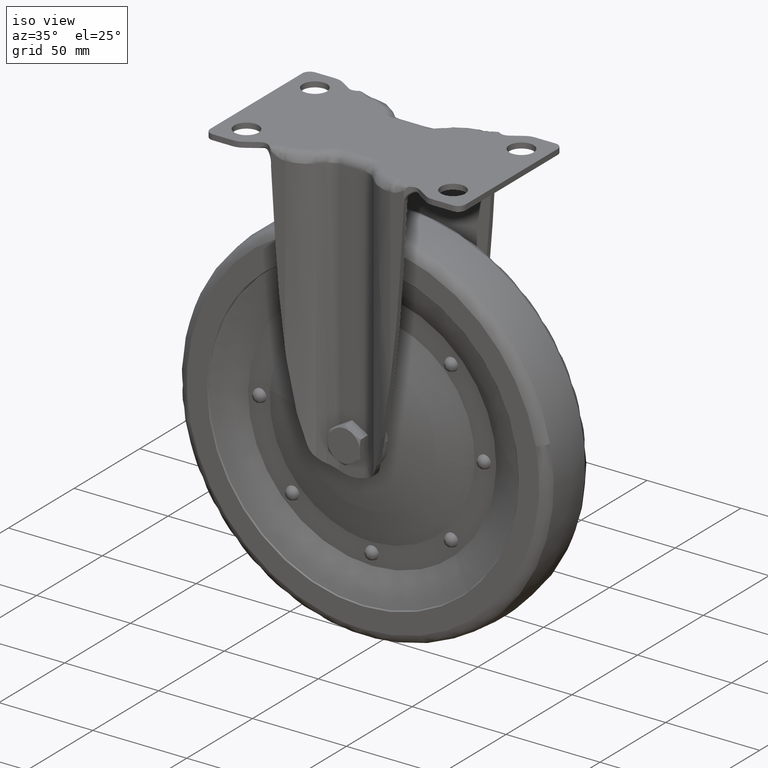
[diagram: clean part render]
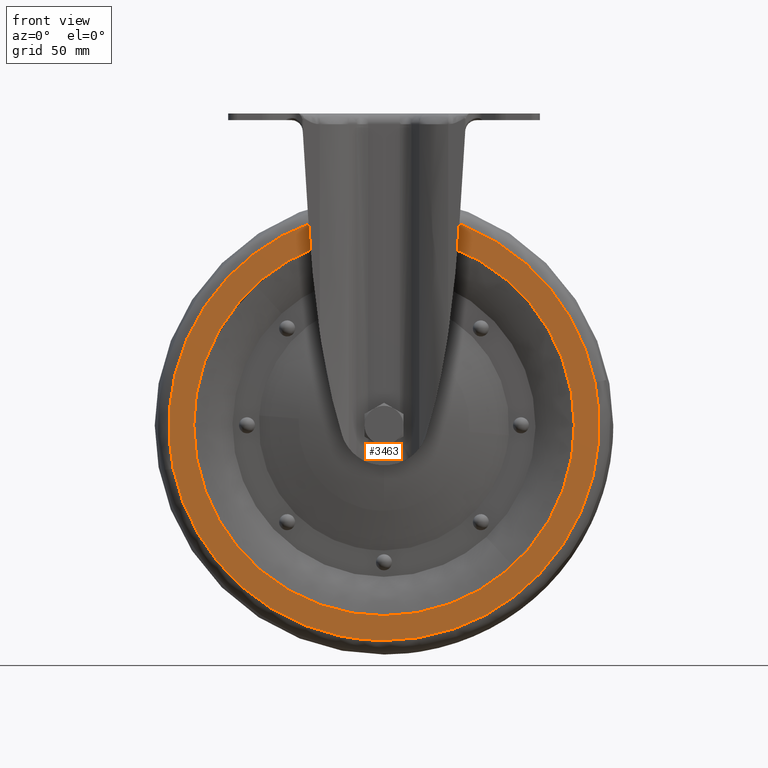
[diagram: tour spotlight — one face highlighted and labeled with its STEP entity id]
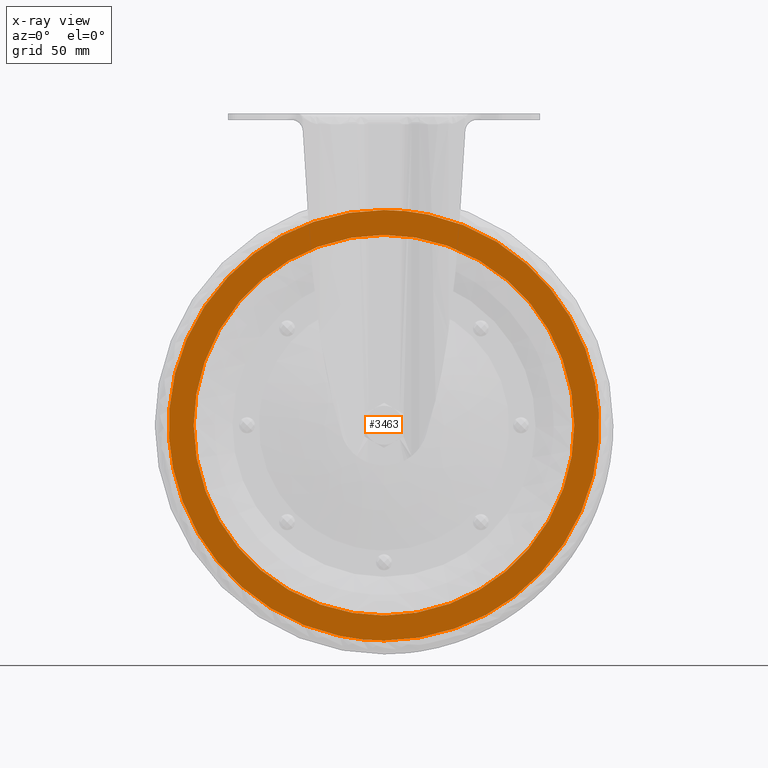
[diagram: x-ray of the same camera — body ghosted, this tour face saturated]
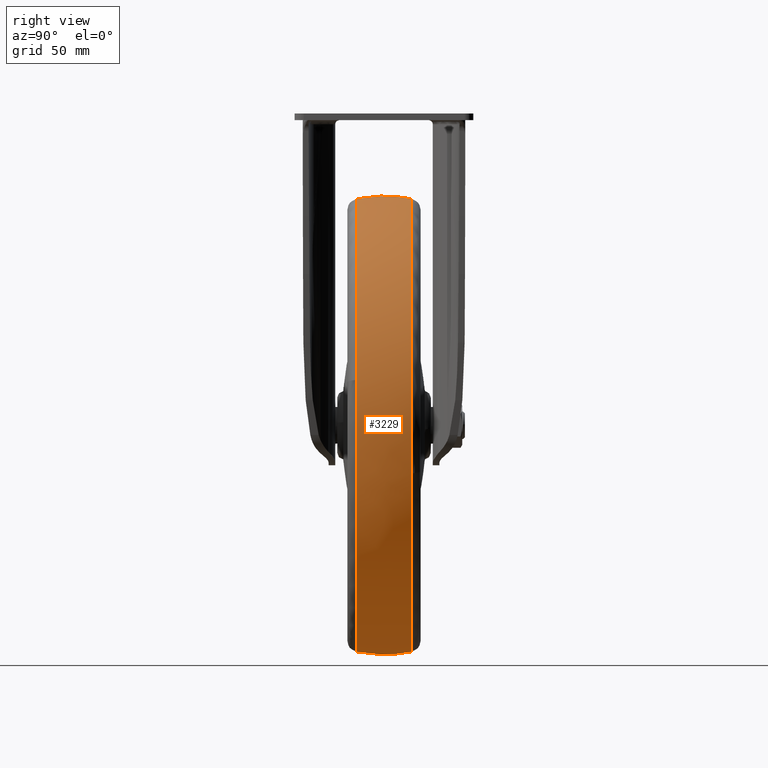
[diagram: tour spotlight — one face highlighted and labeled with its STEP entity id]
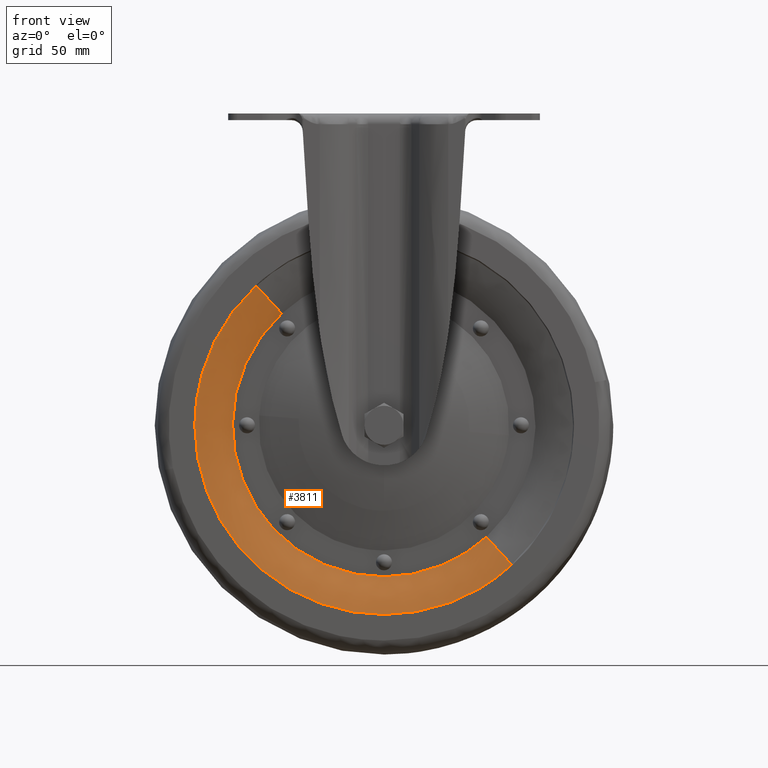
[diagram: tour spotlight — one face highlighted and labeled with its STEP entity id]
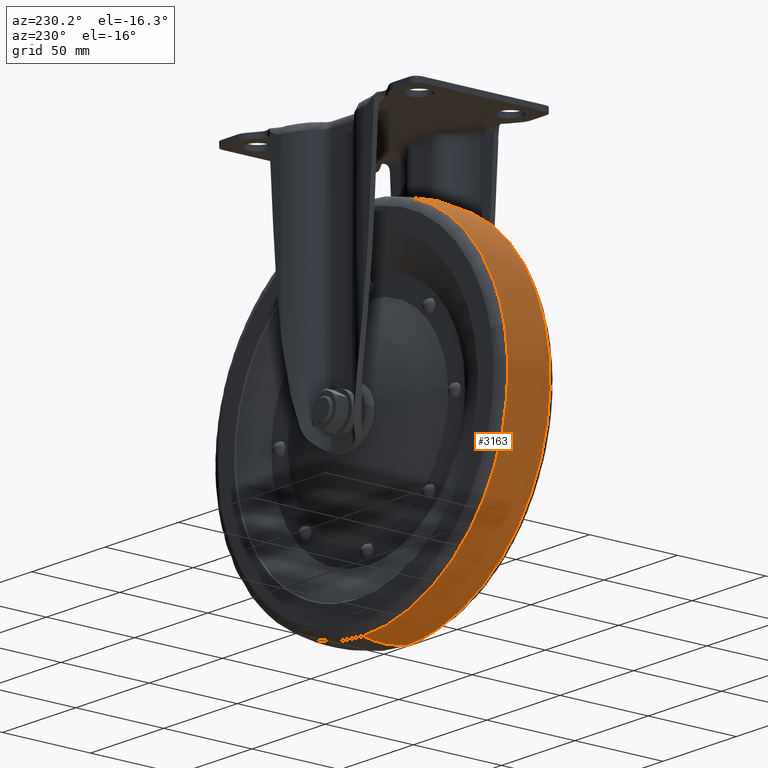
[diagram: tour spotlight — one face highlighted and labeled with its STEP entity id]
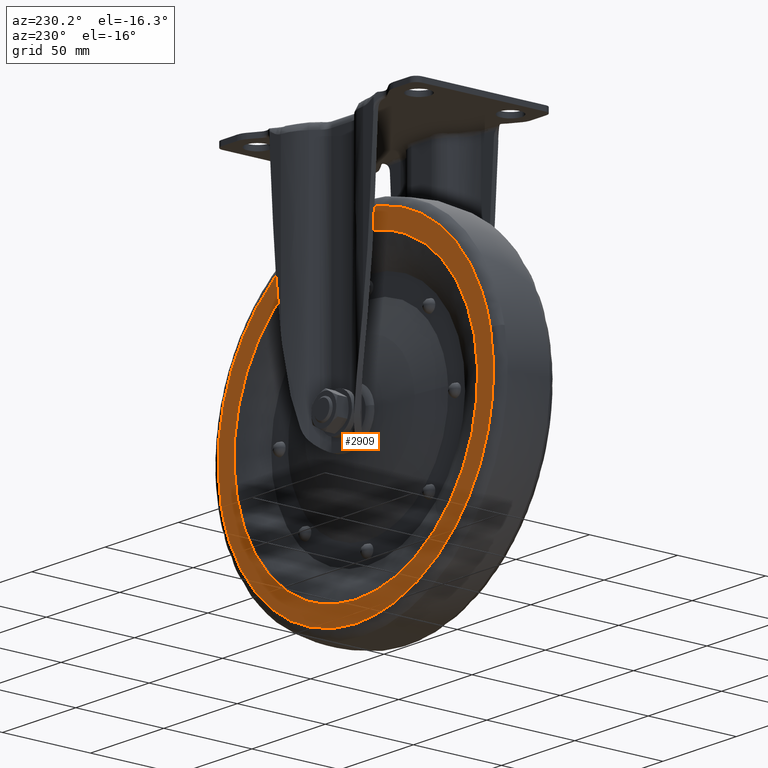
[diagram: tour spotlight — one face highlighted and labeled with its STEP entity id]
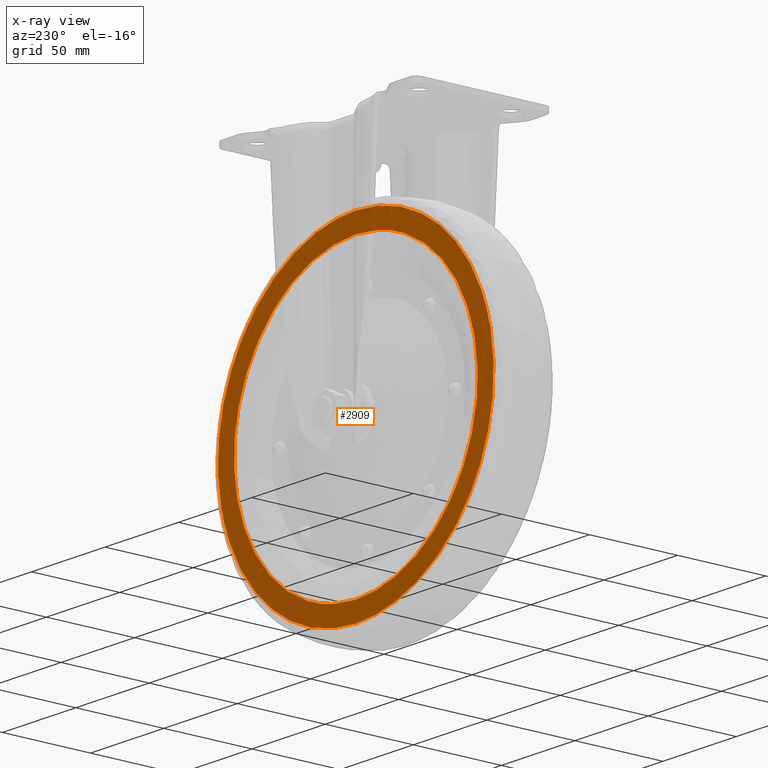
[diagram: x-ray of the same camera — body ghosted, this tour face saturated]
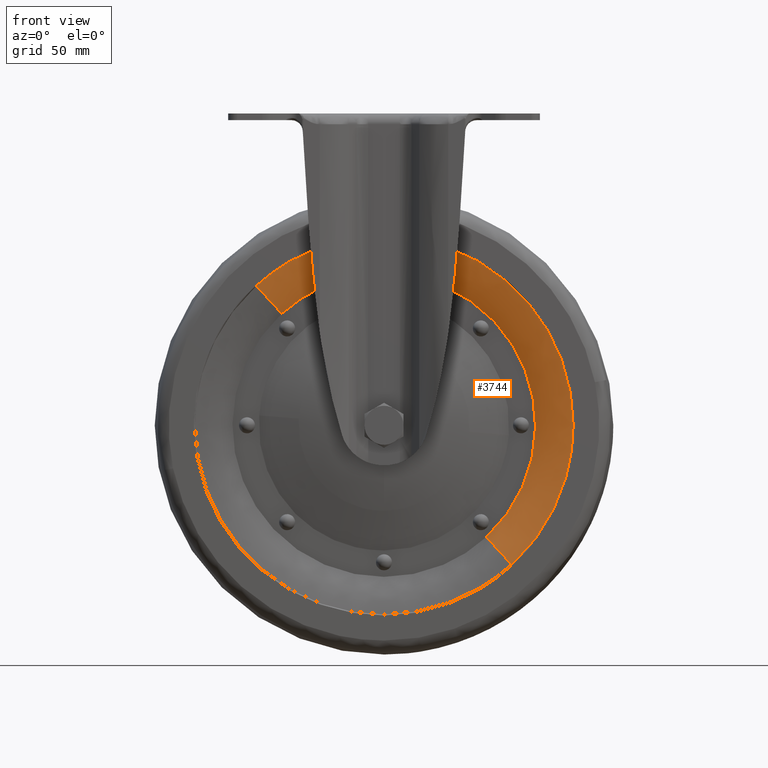
[diagram: tour spotlight — one face highlighted and labeled with its STEP entity id]
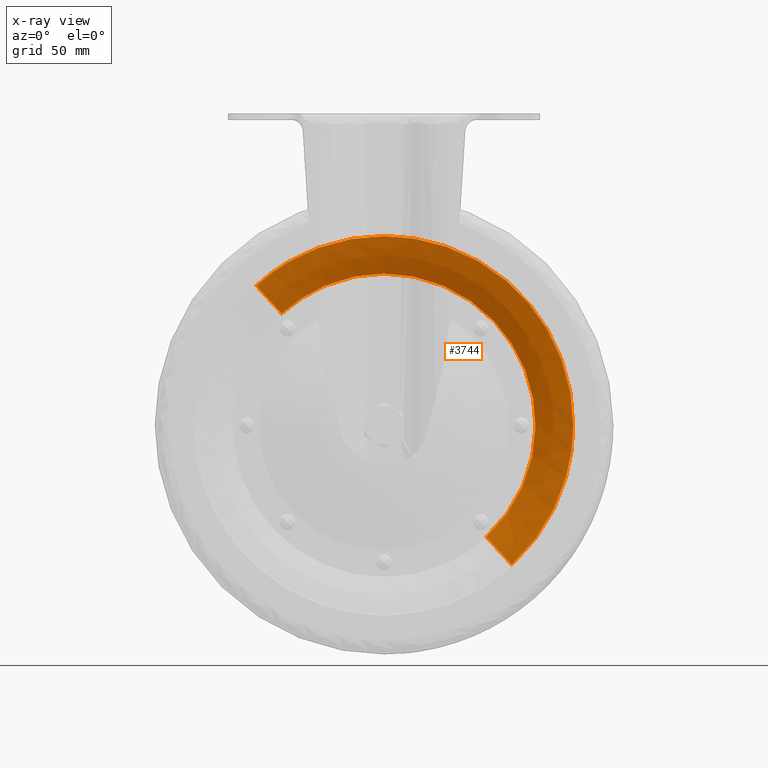
[diagram: x-ray of the same camera — body ghosted, this tour face saturated]
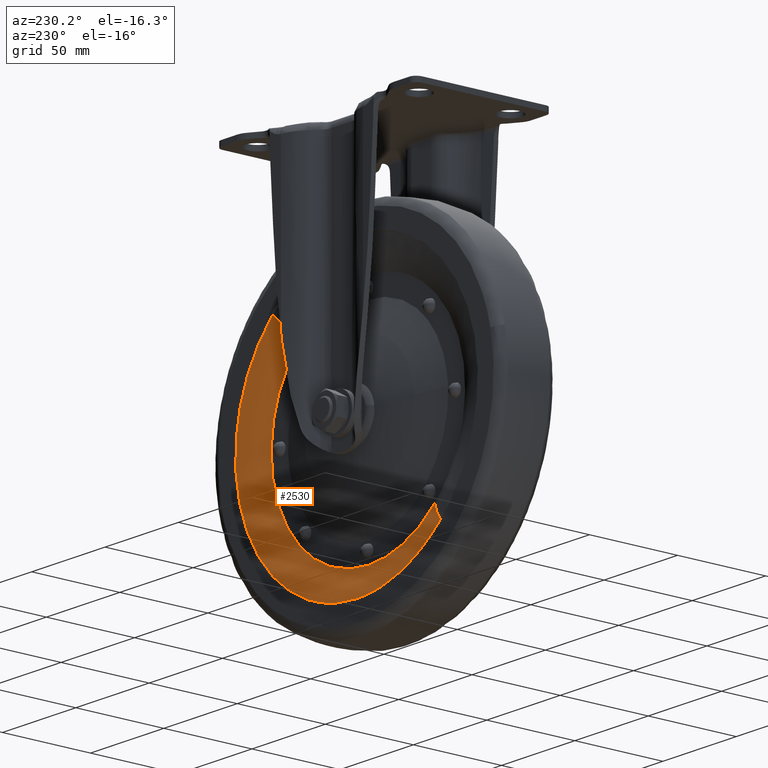
[diagram: tour spotlight — one face highlighted and labeled with its STEP entity id]
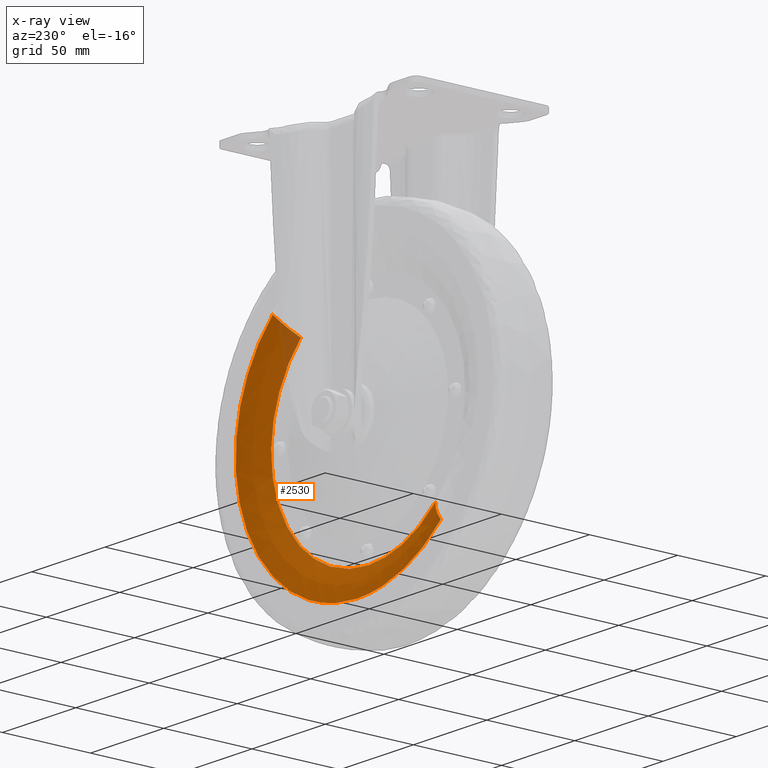
[diagram: x-ray of the same camera — body ghosted, this tour face saturated]
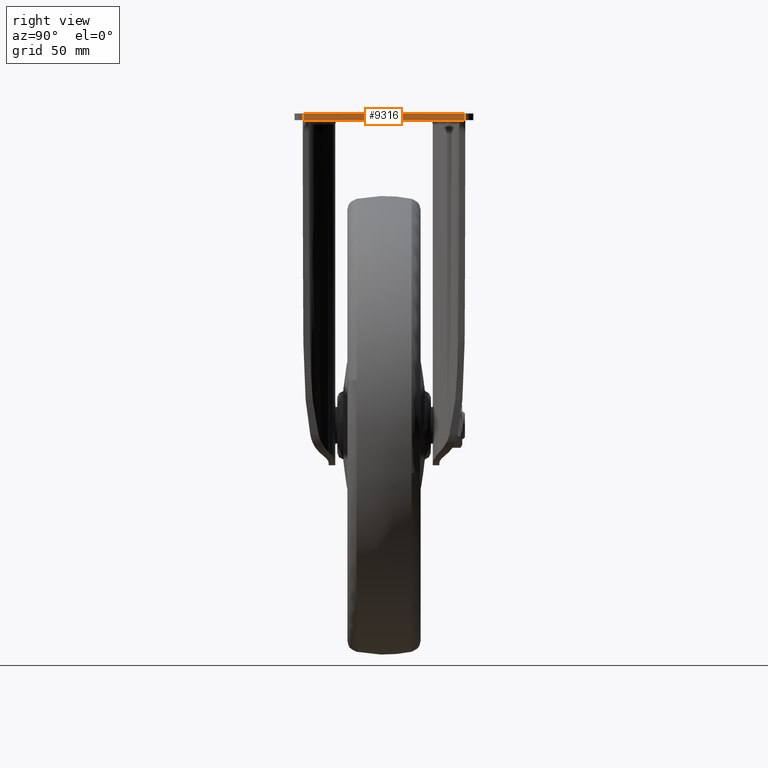
[diagram: tour spotlight — one face highlighted and labeled with its STEP entity id]
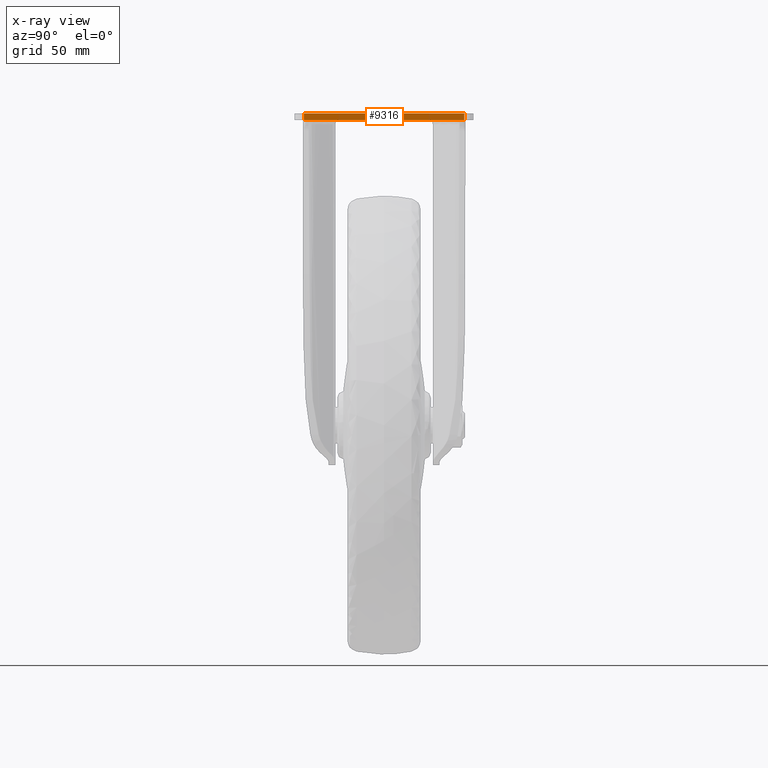
[diagram: x-ray of the same camera — body ghosted, this tour face saturated]
A machine part: a face-by-face anatomy tour. The part has 266 B-rep faces; the first image is the clean iso view, then the 8 largest visible faces are spotlighted one at a time (largest first), each with its STEP entity span.

Face 1 — front view, entity #3463. An x-ray twin of the same camera follows (body ghosted, this face saturated) — the face is partly hidden behind the body. In plain terms, the highlighted face is a freeform B-spline surface patch.
Definition (entity closure, byte-faithful):
#3261=CARTESIAN_POINT('',(91.997389573494090,-15.999999999999989,-117.249474772260300));
#3262=VERTEX_POINT('',#3261);
#3276=CARTESIAN_POINT('',(0.0,-15.999999999999989,-229.888774000000010));
#3277=VERTEX_POINT('',#3276);
#3278=CARTESIAN_POINT('',(0.0,-15.999999999999989,-229.888774000000010));
#3279=CARTESIAN_POINT('',(93.888774003047814,-15.999999999999988,-229.888773999378770));
#3280=CARTESIAN_POINT('',(93.888774006779514,-15.999999999999989,-135.999999998618190));
#3281=CARTESIAN_POINT('',(93.888774007155931,-15.999999999999989,-126.529344455530210));
#3282=CARTESIAN_POINT('',(91.997389573494090,-15.999999999999989,-117.249474772260330));
#3290=(BOUNDED_CURVE()B_SPLINE_CURVE(2,(#3278,#3279,#3280,#3281,#3282),.UNSPECIFIED.,.F.,.U.)B_SPLINE_CURVE_WITH_KNOTS((3,2,3),(0.0,0.250000000000000,0.284232961491286),.UNSPECIFIED.)CURVE()GEOMETRIC_REPRESENTATION_ITEM()RATIONAL_B_SPLINE_CURVE((1.0,0.707106781186547,1.0,0.959893590877201,0.930770871026839))REPRESENTATION_ITEM(''));
#3291=EDGE_CURVE('',#3277,#3262,#3290,.T.);
#3293=CARTESIAN_POINT('',(-91.997389573494104,-15.999999999999989,-154.750525227739700));
#3294=VERTEX_POINT('',#3293);
#3295=CARTESIAN_POINT('',(-91.997389573494104,-15.999999999999996,-154.750525227739700));
#3296=CARTESIAN_POINT('',(-76.683024284696884,-15.999999999999991,-229.888774000760630));
#3297=CARTESIAN_POINT('',(0.0,-15.999999999999989,-229.888774000000010));
#3305=(BOUNDED_CURVE()B_SPLINE_CURVE(2,(#3295,#3296,#3297),.UNSPECIFIED.,.F.,.U.)B_SPLINE_CURVE_WITH_KNOTS((3,3),(0.784232961491286,1.0),.UNSPECIFIED.)CURVE()GEOMETRIC_REPRESENTATION_ITEM()RATIONAL_B_SPLINE_CURVE((0.930770871026839,0.747213190309346,1.0))REPRESENTATION_ITEM(''));
#3306=EDGE_CURVE('',#3294,#3277,#3305,.T.);
#3355=CARTESIAN_POINT('',(0.0,-16.0,-42.111226000000023));
#3356=VERTEX_POINT('',#3355);
#3357=CARTESIAN_POINT('',(0.0,-16.0,-42.111226000000023));
#3358=CARTESIAN_POINT('',(-93.888774003047814,-16.0,-42.111226000621251));
#3359=CARTESIAN_POINT('',(-93.888774006779528,-15.999999999999989,-136.000000001381810));
#3360=CARTESIAN_POINT('',(-93.888774007155945,-15.999999999999998,-145.470655544469820));
#3361=CARTESIAN_POINT('',(-91.997389573494104,-15.999999999999996,-154.750525227739700));
#3369=(BOUNDED_CURVE()B_SPLINE_CURVE(2,(#3357,#3358,#3359,#3360,#3361),.UNSPECIFIED.,.F.,.U.)B_SPLINE_CURVE_WITH_KNOTS((3,2,3),(0.500000000000000,0.750000000000000,0.784232961491286),.UNSPECIFIED.)CURVE()GEOMETRIC_REPRESENTATION_ITEM()RATIONAL_B_SPLINE_CURVE((1.0,0.707106781186547,1.0,0.959893590877201,0.930770871026839))REPRESENTATION_ITEM(''));
#3370=EDGE_CURVE('',#3356,#3294,#3369,.T.);
#3372=CARTESIAN_POINT('',(91.997389573494090,-15.999999999999989,-117.249474772260330));
#3373=CARTESIAN_POINT('',(76.683024284696828,-16.000000000000004,-42.111225999239444));
#3374=CARTESIAN_POINT('',(0.0,-16.0,-42.111226000000023));
#3382=(BOUNDED_CURVE()B_SPLINE_CURVE(2,(#3372,#3373,#3374),.UNSPECIFIED.,.F.,.U.)B_SPLINE_CURVE_WITH_KNOTS((3,3),(0.284232961491286,0.500000000000000),.UNSPECIFIED.)CURVE()GEOMETRIC_REPRESENTATION_ITEM()RATIONAL_B_SPLINE_CURVE((0.930770871026839,0.747213190309346,1.0))REPRESENTATION_ITEM(''));
#3383=EDGE_CURVE('',#3262,#3356,#3382,.T.);
#3390=CARTESIAN_POINT('',(-103.238828283675300,-16.0,-32.731737841349343));
#3391=CARTESIAN_POINT('',(-103.238828283675300,-16.0,-239.268267195237000));
#3392=CARTESIAN_POINT('',(103.238833318826100,-16.0,-32.731737841349343));
#3393=CARTESIAN_POINT('',(103.238833318826100,-16.0,-239.268267195237000));
#3394=B_SPLINE_SURFACE_WITH_KNOTS('',1,1,((#3390,#3392),(#3391,#3393)),.UNSPECIFIED.,.F.,.F.,.U.,(2,2),(2,2),(0.0,206.536529353887600),(0.0,206.477661602501310),.UNSPECIFIED.);
#3395=ORIENTED_EDGE('',*,*,#3291,.T.);
#3396=ORIENTED_EDGE('',*,*,#3383,.T.);
#3397=ORIENTED_EDGE('',*,*,#3370,.T.);
#3398=ORIENTED_EDGE('',*,*,#3306,.T.);
#3399=EDGE_LOOP('',(#3395,#3396,#3397,#3398));
#3400=FACE_OUTER_BOUND('',#3399,.T.);
#3401=CARTESIAN_POINT('',(0.0,-16.0,-53.000000000000007));
#3402=VERTEX_POINT('',#3401);
#3403=CARTESIAN_POINT('',(-82.999999987765733,-16.0,-136.0));
#3404=VERTEX_POINT('',#3403);
#3405=CARTESIAN_POINT('',(0.0,-16.0,-53.000000000000007));
#3406=CARTESIAN_POINT('',(-82.999999993882895,-16.0,-53.000000000000014));
#3407=CARTESIAN_POINT('',(-82.999999987765733,-16.0,-136.0));
#3415=(BOUNDED_CURVE()B_SPLINE_CURVE(2,(#3405,#3406,#3407),.UNSPECIFIED.,.F.,.U.)B_SPLINE_CURVE_WITH_KNOTS((3,3),(0.500000000000000,0.750000000000000),.UNSPECIFIED.)CURVE()GEOMETRIC_REPRESENTATION_ITEM()RATIONAL_B_SPLINE_CURVE((1.0,0.707106781186547,1.0))REPRESENTATION_ITEM(''));
#3416=EDGE_CURVE('',#3402,#3404,#3415,.T.);
#3417=ORIENTED_EDGE('',*,*,#3416,.F.);
#3418=CARTESIAN_POINT('',(82.999999987765733,-16.0,-136.0));
#3419=VERTEX_POINT('',#3418);
#3420=CARTESIAN_POINT('',(82.999999987765733,-16.0,-136.0));
#3421=CARTESIAN_POINT('',(82.999999993882895,-16.0,-53.000000000000014));
#3422=CARTESIAN_POINT('',(0.0,-16.0,-53.000000000000007));
#3430=(BOUNDED_CURVE()B_SPLINE_CURVE(2,(#3420,#3421,#3422),.UNSPECIFIED.,.F.,.U.)B_SPLINE_CURVE_WITH_KNOTS((3,3),(0.250000000000000,0.500000000000000),.UNSPECIFIED.)CURVE()GEOMETRIC_REPRESENTATION_ITEM()RATIONAL_B_SPLINE_CURVE((1.0,0.707106781186547,1.0))REPRESENTATION_ITEM(''));
#3431=EDGE_CURVE('',#3419,#3402,#3430,.T.);
#3432=ORIENTED_EDGE('',*,*,#3431,.F.);
#3433=CARTESIAN_POINT('',(0.0,-16.0,-219.0));
#3434=VERTEX_POINT('',#3433);
#3435=CARTESIAN_POINT('',(0.0,-16.0,-219.0));
#3436=CARTESIAN_POINT('',(82.999999993882895,-16.0,-219.000000000000030));
#3437=CARTESIAN_POINT('',(82.999999987765733,-16.0,-136.0));
#3445=(BOUNDED_CURVE()B_SPLINE_CURVE(2,(#3435,#3436,#3437),.UNSPECIFIED.,.F.,.U.)B_SPLINE_CURVE_WITH_KNOTS((3,3),(0.0,0.250000000000000),.UNSPECIFIED.)CURVE()GEOMETRIC_REPRESENTATION_ITEM()RATIONAL_B_SPLINE_CURVE((1.0,0.707106781186547,1.0))REPRESENTATION_ITEM(''));
#3446=EDGE_CURVE('',#3434,#3419,#3445,.T.);
#3447=ORIENTED_EDGE('',*,*,#3446,.F.);
#3448=CARTESIAN_POINT('',(-82.999999987765733,-16.0,-136.0));
#3449=CARTESIAN_POINT('',(-82.999999993882895,-16.0,-219.000000000000030));
#3450=CARTESIAN_POINT('',(0.0,-16.0,-219.0));
#3458=(BOUNDED_CURVE()B_SPLINE_CURVE(2,(#3448,#3449,#3450),.UNSPECIFIED.,.F.,.U.)B_SPLINE_CURVE_WITH_KNOTS((3,3),(0.750000000000000,1.0),.UNSPECIFIED.)CURVE()GEOMETRIC_REPRESENTATION_ITEM()RATIONAL_B_SPLINE_CURVE((1.0,0.707106781186547,1.0))REPRESENTATION_ITEM(''));
#3459=EDGE_CURVE('',#3404,#3434,#3458,.T.);
#3460=ORIENTED_EDGE('',*,*,#3459,.F.);
#3461=EDGE_LOOP('',(#3417,#3432,#3447,#3460));
#3462=FACE_BOUND('',#3461,.T.);
#3463=ADVANCED_FACE('',(#3400,#3462),#3394,.T.);

Face 2 — right view, entity #3229. In plain terms, the highlighted face is a freeform B-spline surface patch.
Definition (entity closure, byte-faithful):
#2956=CARTESIAN_POINT('',(0.0,12.000015328549949,-37.212249302135028));
#2957=VERTEX_POINT('',#2956);
#2971=CARTESIAN_POINT('',(96.542121274554972,12.000015035980789,-156.943705850629410));
#2972=VERTEX_POINT('',#2971);
#2973=CARTESIAN_POINT('',(96.542121274554972,12.000015035980788,-156.943705850629390));
#2974=CARTESIAN_POINT('',(98.787752485569953,12.000015048626095,-146.592243583212930));
#2975=CARTESIAN_POINT('',(98.787752560723320,12.000015064309590,-135.999999725332910));
#2976=CARTESIAN_POINT('',(98.787753261635402,12.000015210580445,-37.212249179529856));
#2977=CARTESIAN_POINT('',(0.0,12.000015328549949,-37.212249302135028));
#2985=(BOUNDED_CURVE()B_SPLINE_CURVE(2,(#2973,#2974,#2975,#2976,#2977),.UNSPECIFIED.,.F.,.U.)B_SPLINE_CURVE_WITH_KNOTS((3,2,3),(0.213703257453438,0.250000000000000,0.500000000000000),.UNSPECIFIED.)CURVE()GEOMETRIC_REPRESENTATION_ITEM()RATIONAL_B_SPLINE_CURVE((0.927299384407505,0.957475720972378,1.0,0.707106781186548,1.0))REPRESENTATION_ITEM(''));
#2986=EDGE_CURVE('',#2972,#2957,#2985,.T.);
#3035=CARTESIAN_POINT('',(0.0,12.000015328619570,-234.787750697850810));
#3036=VERTEX_POINT('',#3035);
#3037=CARTESIAN_POINT('',(0.0,12.000015328619570,-234.787750697850810));
#3038=CARTESIAN_POINT('',(79.654748330805901,12.000015182313897,-234.787750545795920));
#3039=CARTESIAN_POINT('',(96.542121274554972,12.000015035980789,-156.943705850629410));
#3047=(BOUNDED_CURVE()B_SPLINE_CURVE(2,(#3037,#3038,#3039),.UNSPECIFIED.,.F.,.U.)B_SPLINE_CURVE_WITH_KNOTS((3,3),(0.0,0.213703257453438),.UNSPECIFIED.)CURVE()GEOMETRIC_REPRESENTATION_ITEM()RATIONAL_B_SPLINE_CURVE((1.0,0.749631060214170,0.927299384407505))REPRESENTATION_ITEM(''));
#3048=EDGE_CURVE('',#3036,#2972,#3047,.T.);
#3099=CARTESIAN_POINT('',(0.0,-12.000020618110529,-37.212250381865452));
#3100=VERTEX_POINT('',#3099);
#3101=CARTESIAN_POINT('',(0.0,-12.000020618110538,-37.212250381865445));
#3102=CARTESIAN_POINT('',(0.0,-0.000002754979827,-34.762752608763108));
#3103=CARTESIAN_POINT('',(0.0,12.000015328549951,-37.212249302135021));
#3111=(BOUNDED_CURVE()B_SPLINE_CURVE(2,(#3101,#3102,#3103),.UNSPECIFIED.,.F.,.U.)B_SPLINE_CURVE_WITH_KNOTS((3,3),(0.458261210384483,0.541738770837838),.UNSPECIFIED.)CURVE()GEOMETRIC_REPRESENTATION_ITEM()RATIONAL_B_SPLINE_CURVE((0.868829969366753,0.851275982279765,0.868829961469467))REPRESENTATION_ITEM(''));
#3112=EDGE_CURVE('',#3100,#2957,#3111,.T.);
#3116=CARTESIAN_POINT('',(0.0,-12.000010309101929,-234.787751722455910));
#3117=VERTEX_POINT('',#3116);
#3118=CARTESIAN_POINT('',(0.0,-12.000010309101938,-234.787751722455880));
#3119=CARTESIAN_POINT('',(0.0,0.000002614332331,-237.237246295244400));
#3120=CARTESIAN_POINT('',(0.0,12.000015328619574,-234.787750697850810));
#3128=(BOUNDED_CURVE()B_SPLINE_CURVE(2,(#3118,#3119,#3120),.UNSPECIFIED.,.F.,.U.)B_SPLINE_CURVE_WITH_KNOTS((3,3),(0.458261246980951,0.541738770838086),.UNSPECIFIED.)CURVE()GEOMETRIC_REPRESENTATION_ITEM()RATIONAL_B_SPLINE_CURVE((0.868829953975463,0.851275989975357,0.868829961469571))REPRESENTATION_ITEM(''));
#3129=EDGE_CURVE('',#3117,#3036,#3128,.T.);
#3164=CARTESIAN_POINT('',(-2.754760368789474,-13.170906791711442,-234.536545971589930));
#3165=CARTESIAN_POINT('',(-2.837610005250596,-0.000004381945955,-237.500040402674700));
#3166=CARTESIAN_POINT('',(-2.754760421260994,13.170898450123929,-234.536547848472650));
#3167=CARTESIAN_POINT('',(-1.385401701748730,-13.170906791711445,-234.536545971589850));
#3168=CARTESIAN_POINT('',(-1.427067767749578,-0.000004381945955,-237.500040402674700));
#3169=CARTESIAN_POINT('',(-1.385401728137281,13.170898450123923,-234.536547848472650));
#3170=CARTESIAN_POINT('',(98.536545971589817,-13.170906791711442,-234.536545971589760));
#3171=CARTESIAN_POINT('',(101.500040402674670,-0.000004381945956,-237.500040402674700));
#3172=CARTESIAN_POINT('',(98.536547848472622,13.170898450123925,-234.536547848472620));
#3173=CARTESIAN_POINT('',(98.536545971589845,-13.170906791711447,-135.999999999999970));
#3174=CARTESIAN_POINT('',(101.500040402674710,-0.000004381945955,-136.000000000000090));
#3175=CARTESIAN_POINT('',(98.536547848472651,13.170898450123927,-135.999999999999970));
#3176=CARTESIAN_POINT('',(98.536545971589817,-13.170906791711442,-37.463454028410183));
#3177=CARTESIAN_POINT('',(101.500040402674670,-0.000004381945956,-34.499959597325322));
#3178=CARTESIAN_POINT('',(98.536547848472622,13.170898450123925,-37.463452151527385));
#3179=CARTESIAN_POINT('',(-1.385401701748743,-13.170906791711444,-37.463454028410183));
#3180=CARTESIAN_POINT('',(-1.427067767749592,-0.000004381945955,-34.499959597325322));
#3181=CARTESIAN_POINT('',(-1.385401728137294,13.170898450123923,-37.463452151527385));
#3182=CARTESIAN_POINT('',(-2.754760368789500,-13.170906791711452,-37.463454028410190));
#3183=CARTESIAN_POINT('',(-2.837610005250622,-0.000004381945955,-34.499959597325322));
#3184=CARTESIAN_POINT('',(-2.754760421261020,13.170898450123927,-37.463452151527385));
#3192=(BOUNDED_SURFACE()B_SPLINE_SURFACE(2,2,((#3164,#3167,#3170,#3173,#3176,#3179,#3182),(#3165,#3168,#3171,#3174,#3177,#3180,#3183),(#3166,#3169,#3172,#3175,#3178,#3181,#3184)),.UNSPECIFIED.,.F.,.F.,.U.)B_SPLINE_SURFACE_WITH_KNOTS((3,3),(3,1,2,1,3),(0.0,26.667021365313168),(0.0,3.313708498984763,168.999133448222490,334.684558397460310,337.998266896445100),.UNSPECIFIED.)GEOMETRIC_REPRESENTATION_ITEM()RATIONAL_B_SPLINE_SURFACE(((0.880871748780579,0.875771474967888,0.615657510520677,0.870671201155198,0.615657510520677,0.875771474967888,0.880871748780579),(0.859386500599922,0.854410627017807,0.600641074329900,0.849434753435691,0.600641074329900,0.854410627017807,0.859386500599923),(0.880871734833040,0.875771461101107,0.615657500772485,0.870671187369173,0.615657500772485,0.875771461101107,0.880871734833041)))REPRESENTATION_ITEM('')SURFACE());
#3193=ORIENTED_EDGE('',*,*,#3112,.F.);
#3194=CARTESIAN_POINT('',(96.797677946003574,-12.000016197202370,-116.271099965862010));
#3195=VERTEX_POINT('',#3194);
#3196=CARTESIAN_POINT('',(96.797677946003574,-12.000016197202376,-116.271099965861980));
#3197=CARTESIAN_POINT('',(80.684230996859725,-12.000020470205584,-37.212250527147681));
#3198=CARTESIAN_POINT('',(0.0,-12.000020618110529,-37.212250381865452));
#3206=(BOUNDED_CURVE()B_SPLINE_CURVE(2,(#3196,#3197,#3198),.UNSPECIFIED.,.F.,.U.)B_SPLINE_CURVE_WITH_KNOTS((3,3),(0.284232964236956,0.500000000000000),.UNSPECIFIED.)CURVE()GEOMETRIC_REPRESENTATION_ITEM()RATIONAL_B_SPLINE_CURVE((0.930770866355238,0.747213193526099,1.0))REPRESENTATION_ITEM(''));
#3207=EDGE_CURVE('',#3195,#3100,#3206,.T.);
#3208=ORIENTED_EDGE('',*,*,#3207,.F.);
#3209=CARTESIAN_POINT('',(0.0,-12.000010309101929,-234.787751722455910));
#3210=CARTESIAN_POINT('',(98.787753244612517,-12.000010188301557,-234.787751841114130));
#3211=CARTESIAN_POINT('',(98.787752531801289,-12.000015194900911,-136.000001316101190));
#3212=CARTESIAN_POINT('',(98.787752459899295,-12.000015699921695,-126.035180226142070));
#3213=CARTESIAN_POINT('',(96.797677946003574,-12.000016197202376,-116.271099965861980));
#3221=(BOUNDED_CURVE()B_SPLINE_CURVE(2,(#3209,#3210,#3211,#3212,#3213),.UNSPECIFIED.,.F.,.U.)B_SPLINE_CURVE_WITH_KNOTS((3,2,3),(0.0,0.250000000000000,0.284232964236956),.UNSPECIFIED.)CURVE()GEOMETRIC_REPRESENTATION_ITEM()RATIONAL_B_SPLINE_CURVE((1.0,0.707106781186548,1.0,0.959893587660449,0.930770866355238))REPRESENTATION_ITEM(''));
#3222=EDGE_CURVE('',#3117,#3195,#3221,.T.);
#3223=ORIENTED_EDGE('',*,*,#3222,.F.);
#3224=ORIENTED_EDGE('',*,*,#3129,.T.);
#3225=ORIENTED_EDGE('',*,*,#3048,.T.);
#3226=ORIENTED_EDGE('',*,*,#2986,.T.);
#3227=EDGE_LOOP('',(#3193,#3208,#3223,#3224,#3225,#3226));
#3228=FACE_OUTER_BOUND('',#3227,.T.);
#3229=ADVANCED_FACE('',(#3228),#3192,.T.);

Face 3 — front view, entity #3811. In plain terms, the highlighted face is a freeform B-spline surface patch.
Definition (entity closure, byte-faithful):
#3525=CARTESIAN_POINT('',(-82.499999999878810,-15.500000484405369,-136.0));
#3526=VERTEX_POINT('',#3525);
#3540=CARTESIAN_POINT('',(-55.714956669665781,-15.499999999911401,-75.155167818362287));
#3541=VERTEX_POINT('',#3540);
#3542=CARTESIAN_POINT('',(-55.714956669665781,-15.499999999911401,-75.155167818362287));
#3543=CARTESIAN_POINT('',(-82.499999999623682,-15.500000242152430,-99.681943141888084));
#3544=CARTESIAN_POINT('',(-82.499999999878810,-15.500000484405369,-136.000000000000060));
#3552=(BOUNDED_CURVE()B_SPLINE_CURVE(2,(#3542,#3543,#3544),.UNSPECIFIED.,.F.,.U.)B_SPLINE_CURVE_WITH_KNOTS((3,3),(0.618362513836544,0.749999999999431),.UNSPECIFIED.)CURVE()GEOMETRIC_REPRESENTATION_ITEM()RATIONAL_B_SPLINE_CURVE((0.853966311196068,0.845777091844331,0.999999999998666))REPRESENTATION_ITEM(''));
#3553=EDGE_CURVE('',#3541,#3526,#3552,.T.);
#3600=CARTESIAN_POINT('',(55.714956669665803,-15.499999999911401,-196.844832181637710));
#3601=VERTEX_POINT('',#3600);
#3615=CARTESIAN_POINT('',(0.0,-15.500000000000000,-218.500000000000000));
#3616=VERTEX_POINT('',#3615);
#3617=CARTESIAN_POINT('',(0.0,-15.500000000000000,-218.500000000000000));
#3618=CARTESIAN_POINT('',(32.065920028526527,-15.499999999955707,-218.499999999808670));
#3619=CARTESIAN_POINT('',(55.714956669665796,-15.499999999911406,-196.844832181637800));
#3627=(BOUNDED_CURVE()B_SPLINE_CURVE(2,(#3617,#3618,#3619),.UNSPECIFIED.,.F.,.U.)B_SPLINE_CURVE_WITH_KNOTS((3,3),(0.0,0.118362513836544),.UNSPECIFIED.)CURVE()GEOMETRIC_REPRESENTATION_ITEM()RATIONAL_B_SPLINE_CURVE((1.0,0.861329689342252,0.853966311196068))REPRESENTATION_ITEM(''));
#3628=EDGE_CURVE('',#3616,#3601,#3627,.T.);
#3630=CARTESIAN_POINT('',(-82.499999999878810,-15.500000484405371,-135.999999999999970));
#3631=CARTESIAN_POINT('',(-82.500000000258638,-15.500000242216233,-218.500000000074380));
#3632=CARTESIAN_POINT('',(0.0,-15.500000000000000,-218.500000000000000));
#3640=(BOUNDED_CURVE()B_SPLINE_CURVE(2,(#3630,#3631,#3632),.UNSPECIFIED.,.F.,.U.)B_SPLINE_CURVE_WITH_KNOTS((3,3),(0.749999999999431,1.0),.UNSPECIFIED.)CURVE()GEOMETRIC_REPRESENTATION_ITEM()RATIONAL_B_SPLINE_CURVE((1.000000000001334,0.707106781185881,1.0))REPRESENTATION_ITEM(''));
#3641=EDGE_CURVE('',#3526,#3616,#3640,.T.);
#3682=CARTESIAN_POINT('',(-44.639836283533128,-9.000000000292157,-87.250014185770311));
#3683=VERTEX_POINT('',#3682);
#3684=CARTESIAN_POINT('',(-55.714956669665781,-15.499999999911402,-75.155167818362287));
#3685=CARTESIAN_POINT('',(-49.713512031659853,-13.983042494866725,-81.709186948490469));
#3686=CARTESIAN_POINT('',(-44.639836283533128,-9.000000000292157,-87.250014185770311));
#3694=(BOUNDED_CURVE()B_SPLINE_CURVE(2,(#3684,#3685,#3686),.UNSPECIFIED.,.F.,.U.)B_SPLINE_CURVE_WITH_KNOTS((3,3),(-1.398555752394213,-0.600023862806642),.UNSPECIFIED.)CURVE()GEOMETRIC_REPRESENTATION_ITEM()RATIONAL_B_SPLINE_CURVE((0.946051541570544,0.925639557247973,0.946124286405057))REPRESENTATION_ITEM(''));
#3695=EDGE_CURVE('',#3541,#3683,#3694,.T.);
#3712=CARTESIAN_POINT('',(44.639836283533128,-9.000000000292161,-184.749985814229690));
#3713=VERTEX_POINT('',#3712);
#3729=CARTESIAN_POINT('',(55.714956669665789,-15.499999999911406,-196.844832181637740));
#3730=CARTESIAN_POINT('',(49.713512031659874,-13.983042494866734,-190.290813051509620));
#3731=CARTESIAN_POINT('',(44.639836283533128,-9.000000000292161,-184.749985814229750));
#3739=(BOUNDED_CURVE()B_SPLINE_CURVE(2,(#3729,#3730,#3731),.UNSPECIFIED.,.F.,.U.)B_SPLINE_CURVE_WITH_KNOTS((3,3),(-1.398555752394214,-0.600023862806644),.UNSPECIFIED.)CURVE()GEOMETRIC_REPRESENTATION_ITEM()RATIONAL_B_SPLINE_CURVE((0.946051541570544,0.925639557247973,0.946124286405057))REPRESENTATION_ITEM(''));
#3740=EDGE_CURVE('',#3601,#3713,#3739,.T.);
#3745=CARTESIAN_POINT('',(-54.582960395477187,-15.639146963977886,-72.940161290561505));
#3746=CARTESIAN_POINT('',(-55.437426535742894,-15.639146963977883,-73.722586720521335));
#3747=CARTESIAN_POINT('',(-117.787724534948480,-15.639146963977881,-130.816082204123460));
#3748=CARTESIAN_POINT('',(-61.485821165412545,-15.639146963977879,-192.301903369536030));
#3749=CARTESIAN_POINT('',(-5.183917795876544,-15.639146963977881,-253.787724534948440));
#3750=CARTESIAN_POINT('',(57.166380203364739,-15.639146963977881,-196.694229051313700));
#3751=CARTESIAN_POINT('',(58.020846343665269,-15.639146963977881,-195.911803621322090));
#3752=CARTESIAN_POINT('',(-48.147414883074930,-14.169281980317994,-80.375164065767578));
#3753=CARTESIAN_POINT('',(-48.901136107809414,-14.169281980317995,-81.065338463022613));
#3754=CARTESIAN_POINT('',(-103.900088969660050,-14.169281980317994,-131.427286482275460));
#3755=CARTESIAN_POINT('',(-54.236401243692313,-14.169281980317994,-185.663687725967780));
#3756=CARTESIAN_POINT('',(-4.572713517724571,-14.169281980317994,-239.900088969660030));
#3757=CARTESIAN_POINT('',(50.426239344157523,-14.169281980317995,-189.538140950378510));
#3758=CARTESIAN_POINT('',(51.179960568922716,-14.169281980317987,-188.847966553095260));
#3759=CARTESIAN_POINT('',(-42.800055882506854,-8.505983232050895,-86.552982081758287));
#3760=CARTESIAN_POINT('',(-43.470067151373705,-8.505983232050893,-87.166504175165102));
#3761=CARTESIAN_POINT('',(-92.360713963525740,-8.505983232050895,-131.935142217529430));
#3762=CARTESIAN_POINT('',(-48.212785872998154,-8.505983232050895,-180.147928090527610));
#3763=CARTESIAN_POINT('',(-4.064857782470563,-8.505983232050895,-228.360713963525820));
#3764=CARTESIAN_POINT('',(44.825789029709419,-8.505983232050895,-183.592075921135800));
#3765=CARTESIAN_POINT('',(45.495800298603562,-8.505983232050895,-182.978553827703960));
#3773=(BOUNDED_SURFACE()B_SPLINE_SURFACE(2,2,((#3745,#3752,#3759),(#3746,#3753,#3760),(#3747,#3754,#3761),(#3748,#3755,#3762),(#3749,#3756,#3763),(#3750,#3757,#3764),(#3751,#3758,#3765)),.UNSPECIFIED.,.F.,.F.,.U.)B_SPLINE_SURFACE_WITH_KNOTS((3,1,2,1,3),(3,3),(0.0,2.762609686034953,140.893093990312790,279.023578294590720,281.786187980740180),(0.0,19.621582543792741),.UNSPECIFIED.)GEOMETRIC_REPRESENTATION_ITEM()RATIONAL_B_SPLINE_SURFACE(((0.959301505293269,0.934314142745981,0.959382454387729),(0.953747120841041,0.928904435871418,0.953827601237820),(0.670473513772359,0.653009385263708,0.670530090587364),(0.948192736388814,0.923494728996854,0.948272748087911),(0.670473513772359,0.653009385263708,0.670530090587364),(0.953747120841272,0.928904435871642,0.953827601238050),(0.959301505293729,0.934314142746430,0.959382454388190)))REPRESENTATION_ITEM('')SURFACE());
#3774=ORIENTED_EDGE('',*,*,#3628,.T.);
#3775=ORIENTED_EDGE('',*,*,#3740,.T.);
#3776=CARTESIAN_POINT('',(0.0,-8.999999999999941,-202.100500000000010));
#3777=VERTEX_POINT('',#3776);
#3778=CARTESIAN_POINT('',(0.0,-8.999999999999941,-202.100500000000010));
#3779=CARTESIAN_POINT('',(25.691798143877428,-9.000000000146050,-202.100500000162440));
#3780=CARTESIAN_POINT('',(44.639836283533128,-9.000000000292161,-184.749985814229690));
#3788=(BOUNDED_CURVE()B_SPLINE_CURVE(2,(#3778,#3779,#3780),.UNSPECIFIED.,.F.,.U.)B_SPLINE_CURVE_WITH_KNOTS((3,3),(0.0,0.118362513836564),.UNSPECIFIED.)CURVE()GEOMETRIC_REPRESENTATION_ITEM()RATIONAL_B_SPLINE_CURVE((1.0,0.861329689342228,0.853966311196065))REPRESENTATION_ITEM(''));
#3789=EDGE_CURVE('',#3777,#3713,#3788,.T.);
#3790=ORIENTED_EDGE('',*,*,#3789,.F.);
#3791=CARTESIAN_POINT('',(-44.639836283533128,-9.000000000292157,-87.250014185770311));
#3792=CARTESIAN_POINT('',(-66.100500000272092,-9.000000000267157,-106.901312516487850));
#3793=CARTESIAN_POINT('',(-66.100500000206580,-9.000000000202837,-135.999999999774390));
#3794=CARTESIAN_POINT('',(-66.100500000057849,-9.000000000056732,-202.100499999936890));
#3795=CARTESIAN_POINT('',(0.0,-8.999999999999941,-202.100500000000010));
#3803=(BOUNDED_CURVE()B_SPLINE_CURVE(2,(#3791,#3792,#3793,#3794,#3795),.UNSPECIFIED.,.F.,.U.)B_SPLINE_CURVE_WITH_KNOTS((3,2,3),(0.618362513836564,0.750000000000000,1.0),.UNSPECIFIED.)CURVE()GEOMETRIC_REPRESENTATION_ITEM()RATIONAL_B_SPLINE_CURVE((0.853966311196065,0.845777091844319,1.0,0.707106781186547,1.0))REPRESENTATION_ITEM(''));
#3804=EDGE_CURVE('',#3683,#3777,#3803,.T.);
#3805=ORIENTED_EDGE('',*,*,#3804,.F.);
#3806=ORIENTED_EDGE('',*,*,#3695,.F.);
#3807=ORIENTED_EDGE('',*,*,#3553,.T.);
#3808=ORIENTED_EDGE('',*,*,#3641,.T.);
#3809=EDGE_LOOP('',(#3774,#3775,#3790,#3805,#3806,#3807,#3808));
#3810=FACE_OUTER_BOUND('',#3809,.T.);
#3811=ADVANCED_FACE('',(#3810),#3773,.T.);

Face 4 — auxiliary view, entity #3163. In plain terms, the highlighted face is a freeform B-spline surface patch.
Definition (entity closure, byte-faithful):
#2941=CARTESIAN_POINT('',(-96.542121274557928,12.000015035966030,-115.056294149369900));
#2942=VERTEX_POINT('',#2941);
#2956=CARTESIAN_POINT('',(0.0,12.000015328549949,-37.212249302135028));
#2957=VERTEX_POINT('',#2956);
#2958=CARTESIAN_POINT('',(0.0,12.000015328549949,-37.212249302135028));
#2959=CARTESIAN_POINT('',(-79.654748330817384,12.000015182244269,-37.212249454189859));
#2960=CARTESIAN_POINT('',(-96.542121274557928,12.000015035966035,-115.056294149369950));
#2968=(BOUNDED_CURVE()B_SPLINE_CURVE(2,(#2958,#2959,#2960),.UNSPECIFIED.,.F.,.U.)B_SPLINE_CURVE_WITH_KNOTS((3,3),(0.500000000000000,0.713703257453461),.UNSPECIFIED.)CURVE()GEOMETRIC_REPRESENTATION_ITEM()RATIONAL_B_SPLINE_CURVE((1.0,0.749631060214143,0.927299384407543))REPRESENTATION_ITEM(''));
#2969=EDGE_CURVE('',#2957,#2942,#2968,.T.);
#3035=CARTESIAN_POINT('',(0.0,12.000015328619570,-234.787750697850810));
#3036=VERTEX_POINT('',#3035);
#3050=CARTESIAN_POINT('',(-96.542121274557928,12.000015035966035,-115.056294149369950));
#3051=CARTESIAN_POINT('',(-98.787752485569968,12.000015048618634,-125.407756416779880));
#3052=CARTESIAN_POINT('',(-98.787752560723348,12.000015064309590,-136.000000274652900));
#3053=CARTESIAN_POINT('',(-98.787753261635402,12.000015210650071,-234.787750820455950));
#3054=CARTESIAN_POINT('',(0.0,12.000015328619570,-234.787750697850810));
#3062=(BOUNDED_CURVE()B_SPLINE_CURVE(2,(#3050,#3051,#3052,#3053,#3054),.UNSPECIFIED.,.F.,.U.)B_SPLINE_CURVE_WITH_KNOTS((3,2,3),(0.713703257453461,0.750000000000000,1.0),.UNSPECIFIED.)CURVE()GEOMETRIC_REPRESENTATION_ITEM()RATIONAL_B_SPLINE_CURVE((0.927299384407543,0.957475720972405,1.0,0.707106781186548,1.0))REPRESENTATION_ITEM(''));
#3063=EDGE_CURVE('',#2942,#3036,#3062,.T.);
#3070=CARTESIAN_POINT('',(2.754760368789474,-13.170906791711442,-37.463454028410190));
#3071=CARTESIAN_POINT('',(2.837610005250596,-0.000004381945955,-34.499959597325322));
#3072=CARTESIAN_POINT('',(2.754760421260994,13.170898450123929,-37.463452151527385));
#3073=CARTESIAN_POINT('',(1.385401701748730,-13.170906791711445,-37.463454028410190));
#3074=CARTESIAN_POINT('',(1.427067767749578,-0.000004381945955,-34.499959597325322));
#3075=CARTESIAN_POINT('',(1.385401728137281,13.170898450123923,-37.463452151527385));
#3076=CARTESIAN_POINT('',(-98.536545971589817,-13.170906791711442,-37.463454028410183));
#3077=CARTESIAN_POINT('',(-101.500040402674670,-0.000004381945956,-34.499959597325322));
#3078=CARTESIAN_POINT('',(-98.536547848472622,13.170898450123925,-37.463452151527385));
#3079=CARTESIAN_POINT('',(-98.536545971589845,-13.170906791711447,-135.999999999999970));
#3080=CARTESIAN_POINT('',(-101.500040402674710,-0.000004381945955,-136.000000000000090));
#3081=CARTESIAN_POINT('',(-98.536547848472651,13.170898450123927,-135.999999999999970));
#3082=CARTESIAN_POINT('',(-98.536545971589817,-13.170906791711442,-234.536545971589760));
#3083=CARTESIAN_POINT('',(-101.500040402674670,-0.000004381945956,-237.500040402674700));
#3084=CARTESIAN_POINT('',(-98.536547848472622,13.170898450123925,-234.536547848472620));
#3085=CARTESIAN_POINT('',(1.385401701748743,-13.170906791711444,-234.536545971589820));
#3086=CARTESIAN_POINT('',(1.427067767749592,-0.000004381945955,-237.500040402674700));
#3087=CARTESIAN_POINT('',(1.385401728137294,13.170898450123923,-234.536547848472650));
#3088=CARTESIAN_POINT('',(2.754760368789500,-13.170906791711452,-234.536545971589900));
#3089=CARTESIAN_POINT('',(2.837610005250622,-0.000004381945955,-237.500040402674670));
#3090=CARTESIAN_POINT('',(2.754760421261020,13.170898450123927,-234.536547848472620));
#3098=(BOUNDED_SURFACE()B_SPLINE_SURFACE(2,2,((#3070,#3073,#3076,#3079,#3082,#3085,#3088),(#3071,#3074,#3077,#3080,#3083,#3086,#3089),(#3072,#3075,#3078,#3081,#3084,#3087,#3090)),.UNSPECIFIED.,.F.,.F.,.U.)B_SPLINE_SURFACE_WITH_KNOTS((3,3),(3,1,2,1,3),(0.0,26.667021365313168),(0.0,3.313708498984765,168.999133448222610,334.684558397460420,337.998266896445220),.UNSPECIFIED.)GEOMETRIC_REPRESENTATION_ITEM()RATIONAL_B_SPLINE_SURFACE(((0.880871748780579,0.875771474967888,0.615657510520677,0.870671201155198,0.615657510520677,0.875771474967888,0.880871748780579),(0.859386500599922,0.854410627017807,0.600641074329900,0.849434753435691,0.600641074329900,0.854410627017807,0.859386500599923),(0.880871734833040,0.875771461101107,0.615657500772485,0.870671187369173,0.615657500772485,0.875771461101107,0.880871734833041)))REPRESENTATION_ITEM('')SURFACE());
#3099=CARTESIAN_POINT('',(0.0,-12.000020618110529,-37.212250381865452));
#3100=VERTEX_POINT('',#3099);
#3101=CARTESIAN_POINT('',(0.0,-12.000020618110538,-37.212250381865445));
#3102=CARTESIAN_POINT('',(0.0,-0.000002754979827,-34.762752608763108));
#3103=CARTESIAN_POINT('',(0.0,12.000015328549951,-37.212249302135021));
#3111=(BOUNDED_CURVE()B_SPLINE_CURVE(2,(#3101,#3102,#3103),.UNSPECIFIED.,.F.,.U.)B_SPLINE_CURVE_WITH_KNOTS((3,3),(0.458261210384483,0.541738770837838),.UNSPECIFIED.)CURVE()GEOMETRIC_REPRESENTATION_ITEM()RATIONAL_B_SPLINE_CURVE((0.868829969366753,0.851275982279765,0.868829961469467))REPRESENTATION_ITEM(''));
#3112=EDGE_CURVE('',#3100,#2957,#3111,.T.);
#3113=ORIENTED_EDGE('',*,*,#3112,.T.);
#3114=ORIENTED_EDGE('',*,*,#2969,.T.);
#3115=ORIENTED_EDGE('',*,*,#3063,.T.);
#3116=CARTESIAN_POINT('',(0.0,-12.000010309101929,-234.787751722455910));
#3117=VERTEX_POINT('',#3116);
#3118=CARTESIAN_POINT('',(0.0,-12.000010309101938,-234.787751722455880));
#3119=CARTESIAN_POINT('',(0.0,0.000002614332331,-237.237246295244400));
#3120=CARTESIAN_POINT('',(0.0,12.000015328619574,-234.787750697850810));
#3128=(BOUNDED_CURVE()B_SPLINE_CURVE(2,(#3118,#3119,#3120),.UNSPECIFIED.,.F.,.U.)B_SPLINE_CURVE_WITH_KNOTS((3,3),(0.458261246980951,0.541738770838086),.UNSPECIFIED.)CURVE()GEOMETRIC_REPRESENTATION_ITEM()RATIONAL_B_SPLINE_CURVE((0.868829953975463,0.851275989975357,0.868829961469571))REPRESENTATION_ITEM(''));
#3129=EDGE_CURVE('',#3117,#3036,#3128,.T.);
#3130=ORIENTED_EDGE('',*,*,#3129,.F.);
#3131=CARTESIAN_POINT('',(-96.797678357794183,-12.000014138391469,-155.728900118067400));
#3132=VERTEX_POINT('',#3131);
#3133=CARTESIAN_POINT('',(-96.797678357794169,-12.000014138391476,-155.728900118067460));
#3134=CARTESIAN_POINT('',(-80.684232715551317,-12.000010161197514,-234.787751577173880));
#3135=CARTESIAN_POINT('',(0.0,-12.000010309101929,-234.787751722455910));
#3143=(BOUNDED_CURVE()B_SPLINE_CURVE(2,(#3133,#3134,#3135),.UNSPECIFIED.,.F.,.U.)B_SPLINE_CURVE_WITH_KNOTS((3,3),(0.784232960802653,1.0),.UNSPECIFIED.)CURVE()GEOMETRIC_REPRESENTATION_ITEM()RATIONAL_B_SPLINE_CURVE((0.930770872198509,0.747213189502563,1.0))REPRESENTATION_ITEM(''));
#3144=EDGE_CURVE('',#3132,#3117,#3143,.T.);
#3145=ORIENTED_EDGE('',*,*,#3144,.F.);
#3146=CARTESIAN_POINT('',(0.0,-12.000020618110529,-37.212250381865452));
#3147=CARTESIAN_POINT('',(-98.787753244613569,-12.000020497310594,-37.212250263207366));
#3148=CARTESIAN_POINT('',(-98.787752531803648,-12.000015194901881,-136.000000788220600));
#3149=CARTESIAN_POINT('',(-98.787752459901796,-12.000014660042572,-145.964820836724870));
#3150=CARTESIAN_POINT('',(-96.797678357794169,-12.000014138391476,-155.728900118067460));
#3158=(BOUNDED_CURVE()B_SPLINE_CURVE(2,(#3146,#3147,#3148,#3149,#3150),.UNSPECIFIED.,.F.,.U.)B_SPLINE_CURVE_WITH_KNOTS((3,2,3),(0.500000000000000,0.750000000000000,0.784232960802653),.UNSPECIFIED.)CURVE()GEOMETRIC_REPRESENTATION_ITEM()RATIONAL_B_SPLINE_CURVE((1.0,0.707106781186548,1.0,0.959893591683985,0.930770872198509))REPRESENTATION_ITEM(''));
#3159=EDGE_CURVE('',#3100,#3132,#3158,.T.);
#3160=ORIENTED_EDGE('',*,*,#3159,.F.);
#3161=EDGE_LOOP('',(#3113,#3114,#3115,#3130,#3145,#3160));
#3162=FACE_OUTER_BOUND('',#3161,.T.);
#3163=ADVANCED_FACE('',(#3162),#3098,.T.);

Face 5 — auxiliary view, entity #2909. An x-ray twin of the same camera follows (body ghosted, this face saturated) — the face is partly hidden behind the body. In plain terms, the highlighted face is a freeform B-spline surface patch.
Definition (entity closure, byte-faithful):
#2658=CARTESIAN_POINT('',(33.441234163676228,16.0,-211.965017326235910));
#2659=VERTEX_POINT('',#2658);
#2675=CARTESIAN_POINT('',(0.0,16.0,-219.0));
#2676=VERTEX_POINT('',#2675);
#2677=CARTESIAN_POINT('',(0.0,16.0,-219.0));
#2678=CARTESIAN_POINT('',(17.460586500413811,16.000000000000004,-218.999999999352550));
#2679=CARTESIAN_POINT('',(33.441234163676228,16.000000000000004,-211.965017326235850));
#2687=(BOUNDED_CURVE()B_SPLINE_CURVE(2,(#2677,#2678,#2679),.UNSPECIFIED.,.F.,.U.)B_SPLINE_CURVE_WITH_KNOTS((3,3),(0.0,0.068414990138573),.UNSPECIFIED.)CURVE()GEOMETRIC_REPRESENTATION_ITEM()RATIONAL_B_SPLINE_CURVE((1.0,0.919846853292891,0.883563120518122))REPRESENTATION_ITEM(''));
#2688=EDGE_CURVE('',#2676,#2659,#2687,.T.);
#2690=CARTESIAN_POINT('',(-33.441234163676192,16.0,-60.034982673764141));
#2691=VERTEX_POINT('',#2690);
#2692=CARTESIAN_POINT('',(-33.441234163676192,16.0,-60.034982673764141));
#2693=CARTESIAN_POINT('',(-38.701258176272582,16.0,-62.349663966687991));
#2694=CARTESIAN_POINT('',(-47.192967951771742,15.999999999999980,-67.196819400374309));
#2695=CARTESIAN_POINT('',(-56.615965494677212,16.000000000000050,-75.042904394427310));
#2696=CARTESIAN_POINT('',(-63.724136771530603,15.999999999999931,-82.531861105401731));
#2697=CARTESIAN_POINT('',(-70.471641475898366,16.000000000000050,-91.503304545207726));
#2698=CARTESIAN_POINT('',(-75.462341217162688,15.999999999999980,-100.911970597372800));
#2699=CARTESIAN_POINT('',(-78.937249467974652,16.0,-110.001509278028190));
#2700=CARTESIAN_POINT('',(-81.199702829521442,16.000000000000021,-117.949193637654010));
#2701=CARTESIAN_POINT('',(-82.970787692337780,15.999999999999931,-128.729207942367000));
#2702=CARTESIAN_POINT('',(-83.175884094586152,16.000000000000210,-139.520550934062500));
#2703=CARTESIAN_POINT('',(-82.016158258090087,15.999999999999661,-149.634599131594310));
#2704=CARTESIAN_POINT('',(-80.313756023376939,15.999999999999790,-157.417815394425990));
#2705=CARTESIAN_POINT('',(-77.447606843025682,15.999999999999931,-166.411296941109100));
#2706=CARTESIAN_POINT('',(-73.088902222648514,16.000000000000512,-175.956434276600310));
#2707=CARTESIAN_POINT('',(-67.145958462422996,15.999999999999140,-185.129843579931110));
#2708=CARTESIAN_POINT('',(-60.345824017935271,16.000000000001350,-193.291113072319490));
#2709=CARTESIAN_POINT('',(-53.666704629892592,15.999999999999581,-199.558861437776100));
#2710=CARTESIAN_POINT('',(-46.445622805099880,15.999999999999959,-204.925093115522200));
#2711=CARTESIAN_POINT('',(-38.515575379360669,15.999999999999959,-209.771827159505790));
#2712=CARTESIAN_POINT('',(-29.083764107584109,16.000000000000359,-214.022575102268600));
#2713=CARTESIAN_POINT('',(-19.449709031392100,15.999999999999330,-216.844194152462710));
#2714=CARTESIAN_POINT('',(-10.019891052794730,16.000000000001538,-218.570683332175410));
#2715=CARTESIAN_POINT('',(-3.831164770514649,15.999999999998160,-219.000186607008200));
#2716=CARTESIAN_POINT('',(0.0,16.0,-219.0));
#2717=B_SPLINE_CURVE_WITH_KNOTS('',3,(#2692,#2693,#2694,#2695,#2696,#2697,#2698,#2699,#2700,#2701,#2702,#2703,#2704,#2705,#2706,#2707,#2708,#2709,#2710,#2711,#2712,#2713,#2714,#2715,#2716),.UNSPECIFIED.,.F.,.U.,(4,1,1,1,1,1,1,1,1,1,1,1,1,1,1,1,1,1,1,1,1,1,4),(0.000000184073883,17.240223900228930,29.175763477781999,36.690750998679732,48.184216989614697,62.772109909459061,68.518881441666224,77.360003221857511,87.527390194994126,101.230948168438000,109.629972264488200,118.029194512804390,125.102114564811400,137.921705522541600,149.415247347860000,157.814342521447000,169.749887939794090,176.822797062418690,184.779893920943410,197.599546079276990,207.766797436956010,214.839693954959500,226.333168638696410),.UNSPECIFIED.);
#2718=EDGE_CURVE('',#2691,#2676,#2717,.T.);
#2783=CARTESIAN_POINT('',(0.0,16.0,-53.000000000000007));
#2784=VERTEX_POINT('',#2783);
#2785=CARTESIAN_POINT('',(0.0,16.0,-53.000000000000007));
#2786=CARTESIAN_POINT('',(-17.460586500413790,16.000000000000004,-53.000000000647468));
#2787=CARTESIAN_POINT('',(-33.441234163676192,16.000000000000004,-60.034982673764134));
#2795=(BOUNDED_CURVE()B_SPLINE_CURVE(2,(#2785,#2786,#2787),.UNSPECIFIED.,.F.,.U.)B_SPLINE_CURVE_WITH_KNOTS((3,3),(0.500000000000000,0.568414990138573),.UNSPECIFIED.)CURVE()GEOMETRIC_REPRESENTATION_ITEM()RATIONAL_B_SPLINE_CURVE((1.0,0.919846853292891,0.883563120518122))REPRESENTATION_ITEM(''));
#2796=EDGE_CURVE('',#2784,#2691,#2795,.T.);
#2798=CARTESIAN_POINT('',(33.441234163676228,16.0,-211.965017326235910));
#2799=CARTESIAN_POINT('',(37.352346956583261,16.000000000000021,-210.243546189875300));
#2800=CARTESIAN_POINT('',(45.168309251152337,15.999999999999950,-206.055008849486710));
#2801=CARTESIAN_POINT('',(55.160414277124318,16.000000000000050,-198.432427715223100));
#2802=CARTESIAN_POINT('',(62.561896207602608,16.0,-190.798465677756100));
#2803=CARTESIAN_POINT('',(68.264563604760269,16.000000000000011,-183.462631503284910));
#2804=CARTESIAN_POINT('',(72.417385158689612,15.999999999999989,-176.832820369465310));
#2805=CARTESIAN_POINT('',(76.091469343281020,15.999999999999989,-169.436791302405110));
#2806=CARTESIAN_POINT('',(79.510989695025913,16.000000000000089,-160.635034038302110));
#2807=CARTESIAN_POINT('',(81.725005598222538,15.999999999999840,-151.589205328639200));
#2808=CARTESIAN_POINT('',(82.881275840625150,16.000000000000071,-142.223227439312610));
#2809=CARTESIAN_POINT('',(83.172461222491918,16.000000000000071,-133.226781902487490));
#2810=CARTESIAN_POINT('',(82.268445031091446,15.999999999999540,-123.518450117902110));
#2811=CARTESIAN_POINT('',(79.809651983649616,15.999999999999901,-112.275949466792200));
#2812=CARTESIAN_POINT('',(75.841943958724571,16.000000000000181,-101.444509394708310));
#2813=CARTESIAN_POINT('',(70.377498286380330,15.999999999999750,-91.636227362321705));
#2814=CARTESIAN_POINT('',(64.505243277311692,16.000000000000469,-83.504672132034884));
#2815=CARTESIAN_POINT('',(57.181566077128110,15.999999999998820,-75.396046065308383));
#2816=CARTESIAN_POINT('',(48.585800591624093,16.000000000000501,-68.382306528914100));
#2817=CARTESIAN_POINT('',(40.025937186088854,15.999999999999970,-63.151554873206393));
#2818=CARTESIAN_POINT('',(32.740001093170662,15.999999999999901,-59.583565845972871));
#2819=CARTESIAN_POINT('',(24.720601604461720,16.000000000000391,-56.593917830668737));
#2820=CARTESIAN_POINT('',(13.703491092313410,15.999999999998300,-53.808097793709322));
#2821=CARTESIAN_POINT('',(5.304709110940227,16.000000000003649,-52.999322783531063));
#2822=CARTESIAN_POINT('',(0.0,16.0,-53.000000000000007));
#2823=B_SPLINE_CURVE_WITH_KNOTS('',3,(#2798,#2799,#2800,#2801,#2802,#2803,#2804,#2805,#2806,#2807,#2808,#2809,#2810,#2811,#2812,#2813,#2814,#2815,#2816,#2817,#2818,#2819,#2820,#2821,#2822),.UNSPECIFIED.,.F.,.U.,(4,1,1,1,1,1,1,1,1,1,1,1,1,1,1,1,1,1,1,1,1,1,4),(0.000000181508454,12.819597437617521,26.523408189173129,37.574856322301713,44.647763498463057,54.373086783791791,61.003881244813670,69.403050008743861,82.664782610525776,88.853575695913577,97.694572625358830,109.629972263188510,118.029194511599700,132.175011503978200,144.110571885306600,151.625514837297090,162.234916539017010,176.822797061873100,184.779893920487690,192.294883902800000,201.135948374169000,210.419205692726790,226.333168638697710),.UNSPECIFIED.);
#2824=EDGE_CURVE('',#2659,#2784,#2823,.T.);
#2832=CARTESIAN_POINT('',(-103.237792373532400,16.0,-239.268262533969510));
#2833=CARTESIAN_POINT('',(-103.237792373532400,16.0,-32.731732429444250));
#2834=CARTESIAN_POINT('',(103.237795729178600,16.0,-239.268262533969510));
#2835=CARTESIAN_POINT('',(103.237795729178600,16.0,-32.731732429444250));
#2836=B_SPLINE_SURFACE_WITH_KNOTS('',1,1,((#2832,#2834),(#2833,#2835)),.UNSPECIFIED.,.F.,.F.,.U.,(2,2),(2,2),(0.0,206.536530104525210),(0.0,206.475588102710990),.UNSPECIFIED.);
#2837=CARTESIAN_POINT('',(-91.754506350571319,16.0,-116.094912291480100));
#2838=VERTEX_POINT('',#2837);
#2839=CARTESIAN_POINT('',(0.0,16.0,-229.888774341229890));
#2840=VERTEX_POINT('',#2839);
#2841=CARTESIAN_POINT('',(-91.754506350571319,15.999999999999998,-116.094912291480110));
#2842=CARTESIAN_POINT('',(-93.888774366239090,16.000000000000004,-125.933035648361700));
#2843=CARTESIAN_POINT('',(-93.888774364837730,16.0,-135.999999994878610));
#2844=CARTESIAN_POINT('',(-93.888774351768134,15.999999999999998,-229.888774338943730));
#2845=CARTESIAN_POINT('',(0.0,16.0,-229.888774341229890));
#2853=(BOUNDED_CURVE()B_SPLINE_CURVE(2,(#2841,#2842,#2843,#2844,#2845),.UNSPECIFIED.,.F.,.U.)B_SPLINE_CURVE_WITH_KNOTS((3,2,3),(0.713703258528110,0.750000000000000,1.0),.UNSPECIFIED.)CURVE()GEOMETRIC_REPRESENTATION_ITEM()RATIONAL_B_SPLINE_CURVE((0.927299386194423,0.957475722231434,1.0,0.707106781186548,1.0))REPRESENTATION_ITEM(''));
#2854=EDGE_CURVE('',#2838,#2840,#2853,.T.);
#2855=ORIENTED_EDGE('',*,*,#2854,.F.);
#2856=CARTESIAN_POINT('',(0.0,16.0,-42.111225658770110));
#2857=VERTEX_POINT('',#2856);
#2858=CARTESIAN_POINT('',(0.0,16.0,-42.111225658770110));
#2859=CARTESIAN_POINT('',(-75.704594130356526,15.999999999999995,-42.111225655934845));
#2860=CARTESIAN_POINT('',(-91.754506350571319,15.999999999999998,-116.094912291480110));
#2868=(BOUNDED_CURVE()B_SPLINE_CURVE(2,(#2858,#2859,#2860),.UNSPECIFIED.,.F.,.U.)B_SPLINE_CURVE_WITH_KNOTS((3,3),(0.500000000000000,0.713703258528110),.UNSPECIFIED.)CURVE()GEOMETRIC_REPRESENTATION_ITEM()RATIONAL_B_SPLINE_CURVE((1.0,0.749631058955114,0.927299386194423))REPRESENTATION_ITEM(''));
#2869=EDGE_CURVE('',#2857,#2838,#2868,.T.);
#2870=ORIENTED_EDGE('',*,*,#2869,.F.);
#2871=CARTESIAN_POINT('',(91.754506350571305,16.0,-155.905087708519890));
#2872=VERTEX_POINT('',#2871);
#2873=CARTESIAN_POINT('',(91.754506350571305,16.000000000000007,-155.905087708519830));
#2874=CARTESIAN_POINT('',(93.888774366239076,16.0,-146.066964351638320));
#2875=CARTESIAN_POINT('',(93.888774364837744,16.0,-136.000000005121510));
#2876=CARTESIAN_POINT('',(93.888774351768163,15.999999999999998,-42.111225661056281));
#2877=CARTESIAN_POINT('',(0.0,16.0,-42.111225658770110));
#2885=(BOUNDED_CURVE()B_SPLINE_CURVE(2,(#2873,#2874,#2875,#2876,#2877),.UNSPECIFIED.,.F.,.U.)B_SPLINE_CURVE_WITH_KNOTS((3,2,3),(0.213703258528110,0.250000000000000,0.500000000000000),.UNSPECIFIED.)CURVE()GEOMETRIC_REPRESENTATION_ITEM()RATIONAL_B_SPLINE_CURVE((0.927299386194423,0.957475722231434,1.0,0.707106781186548,1.0))REPRESENTATION_ITEM(''));
#2886=EDGE_CURVE('',#2872,#2857,#2885,.T.);
#2887=ORIENTED_EDGE('',*,*,#2886,.F.);
#2888=CARTESIAN_POINT('',(0.0,16.0,-229.888774341229890));
#2889=CARTESIAN_POINT('',(75.704594130356568,15.999999999999998,-229.888774344065210));
#2890=CARTESIAN_POINT('',(91.754506350571305,16.000000000000007,-155.905087708519830));
#2898=(BOUNDED_CURVE()B_SPLINE_CURVE(2,(#2888,#2889,#2890),.UNSPECIFIED.,.F.,.U.)B_SPLINE_CURVE_WITH_KNOTS((3,3),(0.0,0.213703258528110),.UNSPECIFIED.)CURVE()GEOMETRIC_REPRESENTATION_ITEM()RATIONAL_B_SPLINE_CURVE((1.0,0.749631058955114,0.927299386194423))REPRESENTATION_ITEM(''));
#2899=EDGE_CURVE('',#2840,#2872,#2898,.T.);
#2900=ORIENTED_EDGE('',*,*,#2899,.F.);
#2901=EDGE_LOOP('',(#2855,#2870,#2887,#2900));
#2902=FACE_OUTER_BOUND('',#2901,.T.);
#2903=ORIENTED_EDGE('',*,*,#2688,.T.);
#2904=ORIENTED_EDGE('',*,*,#2824,.T.);
#2905=ORIENTED_EDGE('',*,*,#2796,.T.);
#2906=ORIENTED_EDGE('',*,*,#2718,.T.);
#2907=EDGE_LOOP('',(#2903,#2904,#2905,#2906));
#2908=FACE_BOUND('',#2907,.T.);
#2909=ADVANCED_FACE('',(#2902,#2908),#2836,.T.);

Face 6 — front view, entity #3744. An x-ray twin of the same camera follows (body ghosted, this face saturated) — the face is partly hidden behind the body. In plain terms, the highlighted face is a freeform B-spline surface patch.
Definition (entity closure, byte-faithful):
#3493=CARTESIAN_POINT('',(82.499999999878810,-15.500000484405369,-136.000000000000110));
#3494=VERTEX_POINT('',#3493);
#3495=CARTESIAN_POINT('',(0.0,-15.500000000000000,-53.500000000000007));
#3496=VERTEX_POINT('',#3495);
#3497=CARTESIAN_POINT('',(82.499999999878767,-15.500000484405369,-136.000000000000030));
#3498=CARTESIAN_POINT('',(82.500000000258680,-15.500000242216233,-53.499999999925677));
#3499=CARTESIAN_POINT('',(0.0,-15.500000000000000,-53.500000000000007));
#3507=(BOUNDED_CURVE()B_SPLINE_CURVE(2,(#3497,#3498,#3499),.UNSPECIFIED.,.F.,.U.)B_SPLINE_CURVE_WITH_KNOTS((3,3),(0.249999999999431,0.500000000000000),.UNSPECIFIED.)CURVE()GEOMETRIC_REPRESENTATION_ITEM()RATIONAL_B_SPLINE_CURVE((1.000000000001335,0.707106781185881,1.0))REPRESENTATION_ITEM(''));
#3508=EDGE_CURVE('',#3494,#3496,#3507,.T.);
#3540=CARTESIAN_POINT('',(-55.714956669665781,-15.499999999911401,-75.155167818362287));
#3541=VERTEX_POINT('',#3540);
#3555=CARTESIAN_POINT('',(0.0,-15.500000000000000,-53.500000000000007));
#3556=CARTESIAN_POINT('',(-32.065920028526548,-15.499999999955707,-53.500000000191321));
#3557=CARTESIAN_POINT('',(-55.714956669665781,-15.499999999911401,-75.155167818362287));
#3565=(BOUNDED_CURVE()B_SPLINE_CURVE(2,(#3555,#3556,#3557),.UNSPECIFIED.,.F.,.U.)B_SPLINE_CURVE_WITH_KNOTS((3,3),(0.500000000000000,0.618362513836544),.UNSPECIFIED.)CURVE()GEOMETRIC_REPRESENTATION_ITEM()RATIONAL_B_SPLINE_CURVE((1.0,0.861329689342252,0.853966311196068))REPRESENTATION_ITEM(''));
#3566=EDGE_CURVE('',#3496,#3541,#3565,.T.);
#3600=CARTESIAN_POINT('',(55.714956669665803,-15.499999999911401,-196.844832181637710));
#3601=VERTEX_POINT('',#3600);
#3602=CARTESIAN_POINT('',(55.714956669665796,-15.499999999911406,-196.844832181637800));
#3603=CARTESIAN_POINT('',(82.499999999623611,-15.500000242152428,-172.318056858111900));
#3604=CARTESIAN_POINT('',(82.499999999878810,-15.500000484405374,-136.000000000000110));
#3612=(BOUNDED_CURVE()B_SPLINE_CURVE(2,(#3602,#3603,#3604),.UNSPECIFIED.,.F.,.U.)B_SPLINE_CURVE_WITH_KNOTS((3,3),(0.118362513836544,0.249999999999431),.UNSPECIFIED.)CURVE()GEOMETRIC_REPRESENTATION_ITEM()RATIONAL_B_SPLINE_CURVE((0.853966311196068,0.845777091844331,0.999999999998666))REPRESENTATION_ITEM(''));
#3613=EDGE_CURVE('',#3601,#3494,#3612,.T.);
#3650=CARTESIAN_POINT('',(54.582960395477215,-15.639146963977879,-199.059838709438510));
#3651=CARTESIAN_POINT('',(55.437426535742901,-15.639146963977884,-198.277413279478620));
#3652=CARTESIAN_POINT('',(117.787724534948480,-15.639146963977881,-141.183917795876540));
#3653=CARTESIAN_POINT('',(61.485821165412545,-15.639146963977879,-79.698096630464022));
#3654=CARTESIAN_POINT('',(5.183917795876559,-15.639146963977881,-18.212275465051498));
#3655=CARTESIAN_POINT('',(-57.166380203364746,-15.639146963977879,-75.305770948686259));
#3656=CARTESIAN_POINT('',(-58.020846343665298,-15.639146963977877,-76.088196378677978));
#3657=CARTESIAN_POINT('',(48.147414883074951,-14.169281980317988,-191.624835934232350));
#3658=CARTESIAN_POINT('',(48.901136107809421,-14.169281980317997,-190.934661536977360));
#3659=CARTESIAN_POINT('',(103.900088969660050,-14.169281980317994,-140.572713517724590));
#3660=CARTESIAN_POINT('',(54.236401243692328,-14.169281980317994,-86.336312274032252));
#3661=CARTESIAN_POINT('',(4.572713517724584,-14.169281980317994,-32.099911030339953));
#3662=CARTESIAN_POINT('',(-50.426239344157530,-14.169281980317994,-82.461859049621523));
#3663=CARTESIAN_POINT('',(-51.179960568922731,-14.169281980317995,-83.152033446904696));
#3664=CARTESIAN_POINT('',(42.800055882506889,-8.505983232050895,-185.447017918241700));
#3665=CARTESIAN_POINT('',(43.470067151373712,-8.505983232050895,-184.833495824834900));
#3666=CARTESIAN_POINT('',(92.360713963525740,-8.505983232050895,-140.064857782470600));
#3667=CARTESIAN_POINT('',(48.212785872998154,-8.505983232050895,-91.852071909472386));
#3668=CARTESIAN_POINT('',(4.064857782470576,-8.505983232050895,-43.639286036474275));
#3669=CARTESIAN_POINT('',(-44.825789029709433,-8.505983232050895,-88.407924078864156));
#3670=CARTESIAN_POINT('',(-45.495800298603591,-8.505983232050895,-89.021446172295981));
#3678=(BOUNDED_SURFACE()B_SPLINE_SURFACE(2,2,((#3650,#3657,#3664),(#3651,#3658,#3665),(#3652,#3659,#3666),(#3653,#3660,#3667),(#3654,#3661,#3668),(#3655,#3662,#3669),(#3656,#3663,#3670)),.UNSPECIFIED.,.F.,.F.,.U.)B_SPLINE_SURFACE_WITH_KNOTS((3,1,2,1,3),(3,3),(0.0,2.762609686034891,140.893093990312790,279.023578294590610,281.786187980740180),(0.0,19.621582543792670),.UNSPECIFIED.)GEOMETRIC_REPRESENTATION_ITEM()RATIONAL_B_SPLINE_SURFACE(((0.959301505293269,0.934314142745981,0.959382454387729),(0.953747120841041,0.928904435871417,0.953827601237820),(0.670473513772359,0.653009385263708,0.670530090587364),(0.948192736388814,0.923494728996854,0.948272748087911),(0.670473513772359,0.653009385263708,0.670530090587364),(0.953747120841272,0.928904435871642,0.953827601238050),(0.959301505293730,0.934314142746430,0.959382454388190)))REPRESENTATION_ITEM('')SURFACE());
#3679=ORIENTED_EDGE('',*,*,#3613,.T.);
#3680=ORIENTED_EDGE('',*,*,#3508,.T.);
#3681=ORIENTED_EDGE('',*,*,#3566,.T.);
#3682=CARTESIAN_POINT('',(-44.639836283533128,-9.000000000292157,-87.250014185770311));
#3683=VERTEX_POINT('',#3682);
#3684=CARTESIAN_POINT('',(-55.714956669665781,-15.499999999911402,-75.155167818362287));
#3685=CARTESIAN_POINT('',(-49.713512031659853,-13.983042494866725,-81.709186948490469));
#3686=CARTESIAN_POINT('',(-44.639836283533128,-9.000000000292157,-87.250014185770311));
#3694=(BOUNDED_CURVE()B_SPLINE_CURVE(2,(#3684,#3685,#3686),.UNSPECIFIED.,.F.,.U.)B_SPLINE_CURVE_WITH_KNOTS((3,3),(-1.398555752394213,-0.600023862806642),.UNSPECIFIED.)CURVE()GEOMETRIC_REPRESENTATION_ITEM()RATIONAL_B_SPLINE_CURVE((0.946051541570544,0.925639557247973,0.946124286405057))REPRESENTATION_ITEM(''));
#3695=EDGE_CURVE('',#3541,#3683,#3694,.T.);
#3696=ORIENTED_EDGE('',*,*,#3695,.T.);
#3697=CARTESIAN_POINT('',(0.0,-9.0,-69.899500000000003));
#3698=VERTEX_POINT('',#3697);
#3699=CARTESIAN_POINT('',(0.0,-9.0,-69.899500000000003));
#3700=CARTESIAN_POINT('',(-25.691798143877424,-9.000000000146077,-69.899499999837573));
#3701=CARTESIAN_POINT('',(-44.639836283533128,-9.000000000292157,-87.250014185770311));
#3709=(BOUNDED_CURVE()B_SPLINE_CURVE(2,(#3699,#3700,#3701),.UNSPECIFIED.,.F.,.U.)B_SPLINE_CURVE_WITH_KNOTS((3,3),(0.500000000000000,0.618362513836564),.UNSPECIFIED.)CURVE()GEOMETRIC_REPRESENTATION_ITEM()RATIONAL_B_SPLINE_CURVE((1.0,0.861329689342228,0.853966311196065))REPRESENTATION_ITEM(''));
#3710=EDGE_CURVE('',#3698,#3683,#3709,.T.);
#3711=ORIENTED_EDGE('',*,*,#3710,.F.);
#3712=CARTESIAN_POINT('',(44.639836283533128,-9.000000000292161,-184.749985814229690));
#3713=VERTEX_POINT('',#3712);
#3714=CARTESIAN_POINT('',(44.639836283533128,-9.000000000292161,-184.749985814229660));
#3715=CARTESIAN_POINT('',(66.100500000272049,-9.000000000267164,-165.098687483512150));
#3716=CARTESIAN_POINT('',(66.100500000206566,-9.000000000202858,-136.000000000225610));
#3717=CARTESIAN_POINT('',(66.100500000057821,-9.000000000056780,-69.899500000063156));
#3718=CARTESIAN_POINT('',(0.0,-9.0,-69.899500000000003));
#3726=(BOUNDED_CURVE()B_SPLINE_CURVE(2,(#3714,#3715,#3716,#3717,#3718),.UNSPECIFIED.,.F.,.U.)B_SPLINE_CURVE_WITH_KNOTS((3,2,3),(0.118362513836564,0.250000000000000,0.500000000000000),.UNSPECIFIED.)CURVE()GEOMETRIC_REPRESENTATION_ITEM()RATIONAL_B_SPLINE_CURVE((0.853966311196065,0.845777091844319,1.0,0.707106781186547,1.0))REPRESENTATION_ITEM(''));
#3727=EDGE_CURVE('',#3713,#3698,#3726,.T.);
#3728=ORIENTED_EDGE('',*,*,#3727,.F.);
#3729=CARTESIAN_POINT('',(55.714956669665789,-15.499999999911406,-196.844832181637740));
#3730=CARTESIAN_POINT('',(49.713512031659874,-13.983042494866734,-190.290813051509620));
#3731=CARTESIAN_POINT('',(44.639836283533128,-9.000000000292161,-184.749985814229750));
#3739=(BOUNDED_CURVE()B_SPLINE_CURVE(2,(#3729,#3730,#3731),.UNSPECIFIED.,.F.,.U.)B_SPLINE_CURVE_WITH_KNOTS((3,3),(-1.398555752394214,-0.600023862806644),.UNSPECIFIED.)CURVE()GEOMETRIC_REPRESENTATION_ITEM()RATIONAL_B_SPLINE_CURVE((0.946051541570544,0.925639557247973,0.946124286405057))REPRESENTATION_ITEM(''));
#3740=EDGE_CURVE('',#3601,#3713,#3739,.T.);
#3741=ORIENTED_EDGE('',*,*,#3740,.F.);
#3742=EDGE_LOOP('',(#3679,#3680,#3681,#3696,#3711,#3728,#3741));
#3743=FACE_OUTER_BOUND('',#3742,.T.);
#3744=ADVANCED_FACE('',(#3743),#3678,.T.);

Face 7 — auxiliary view, entity #2530. An x-ray twin of the same camera follows (body ghosted, this face saturated) — the face is partly hidden behind the body. In plain terms, the highlighted face is a freeform B-spline surface patch.
Definition (entity closure, byte-faithful):
#2317=CARTESIAN_POINT('',(-45.850830340936852,9.000000000052452,-183.612786699657510));
#2318=VERTEX_POINT('',#2317);
#2319=CARTESIAN_POINT('',(0.0,8.999999999999998,-202.100500000000010));
#2320=VERTEX_POINT('',#2319);
#2321=CARTESIAN_POINT('',(-45.850830340936845,9.000000000052452,-183.612786699657510));
#2322=CARTESIAN_POINT('',(-26.652670931559989,9.000000000026226,-202.100500000028490));
#2323=CARTESIAN_POINT('',(0.0,8.999999999999998,-202.100500000000010));
#2331=(BOUNDED_CURVE()B_SPLINE_CURVE(2,(#2321,#2322,#2323),.UNSPECIFIED.,.F.,.U.)B_SPLINE_CURVE_WITH_KNOTS((3,3),(0.877844262562635,1.0),.UNSPECIFIED.)CURVE()GEOMETRIC_REPRESENTATION_ITEM()RATIONAL_B_SPLINE_CURVE((0.853629213191971,0.856885651461756,1.0))REPRESENTATION_ITEM(''));
#2332=EDGE_CURVE('',#2318,#2320,#2331,.T.);
#2351=CARTESIAN_POINT('',(45.850830340936838,9.000000000052452,-88.387213300342495));
#2352=VERTEX_POINT('',#2351);
#2366=CARTESIAN_POINT('',(0.0,8.999999999999998,-202.100500000000010));
#2367=CARTESIAN_POINT('',(66.100500000011067,9.000000000010573,-202.100499999988640));
#2368=CARTESIAN_POINT('',(66.100500000038508,9.000000000036799,-135.999999999960010));
#2369=CARTESIAN_POINT('',(66.100500000050175,9.000000000047955,-107.887524715787290));
#2370=CARTESIAN_POINT('',(45.850830340936838,9.000000000052452,-88.387213300342495));
#2378=(BOUNDED_CURVE()B_SPLINE_CURVE(2,(#2366,#2367,#2368,#2369,#2370),.UNSPECIFIED.,.F.,.U.)B_SPLINE_CURVE_WITH_KNOTS((3,2,3),(0.0,0.250000000000000,0.377844262562635),.UNSPECIFIED.)CURVE()GEOMETRIC_REPRESENTATION_ITEM()RATIONAL_B_SPLINE_CURVE((1.0,0.707106781186547,1.0,0.850221129724791,0.853629213191971))REPRESENTATION_ITEM(''));
#2379=EDGE_CURVE('',#2320,#2352,#2378,.T.);
#2422=CARTESIAN_POINT('',(-46.662007778762757,8.505983232050948,-181.820403693196250));
#2423=CARTESIAN_POINT('',(-46.007625975382965,8.505983232050946,-182.450569476901020));
#2424=CARTESIAN_POINT('',(1.742540499702803,8.505983232050948,-228.433695724291110));
#2425=CARTESIAN_POINT('',(47.088118111996927,8.505983232050948,-181.345577612294110));
#2426=CARTESIAN_POINT('',(92.433695724291070,8.505983232050948,-134.257459500297160));
#2427=CARTESIAN_POINT('',(44.683529249210792,8.505983232050948,-88.274333252912456));
#2428=CARTESIAN_POINT('',(44.029147445836330,8.505983232050948,-87.644167469212775));
#2429=CARTESIAN_POINT('',(-52.491871832335811,14.169281980318043,-187.545119305042420));
#2430=CARTESIAN_POINT('',(-51.755732789299202,14.169281980318045,-188.254016824158840));
#2431=CARTESIAN_POINT('',(1.960250253412460,14.169281980318045,-239.982188935232900));
#2432=CARTESIAN_POINT('',(52.971219594322633,14.169281980318047,-187.010969340910210));
#2433=CARTESIAN_POINT('',(103.982188935232830,14.169281980318045,-134.039749746587520));
#2434=CARTESIAN_POINT('',(50.266205892527324,14.169281980318042,-82.311577635519498));
#2435=CARTESIAN_POINT('',(49.530066849496727,14.169281980318045,-81.602680116408848));
#2436=CARTESIAN_POINT('',(-59.508112081756408,15.639146963977929,-194.434813425388940));
#2437=CARTESIAN_POINT('',(-58.673578216766792,15.639146963977929,-195.238464572690390));
#2438=CARTESIAN_POINT('',(2.222263899465315,15.639146963977927,-253.880798258225440));
#2439=CARTESIAN_POINT('',(60.051531078845386,15.639146963977932,-193.829267179380140));
#2440=CARTESIAN_POINT('',(117.880798258225470,15.639146963977927,-133.777736100534640));
#2441=CARTESIAN_POINT('',(56.984956142000364,15.639146963977931,-75.135402415006340));
#2442=CARTESIAN_POINT('',(56.150422277017540,15.639146963977929,-74.331751267711383));
#2450=(BOUNDED_SURFACE()B_SPLINE_SURFACE(2,2,((#2422,#2429,#2436),(#2423,#2430,#2437),(#2424,#2431,#2438),(#2425,#2432,#2439),(#2426,#2433,#2440),(#2427,#2434,#2441),(#2428,#2435,#2442)),.UNSPECIFIED.,.F.,.F.,.U.)B_SPLINE_SURFACE_WITH_KNOTS((3,1,2,1,3),(3,3),(0.0,2.762609686103165,140.893093990381000,279.023578294658880,281.786187980739210),(0.0,19.621582543792520),.UNSPECIFIED.)GEOMETRIC_REPRESENTATION_ITEM()RATIONAL_B_SPLINE_SURFACE(((0.959382454388003,0.934314142746249,0.959301505293543),(0.953827601237957,0.928904435871551,0.953747120841179),(0.670530090587364,0.653009385263708,0.670473513772359),(0.948272748087911,0.923494728996854,0.948192736388814),(0.670530090587364,0.653009385263708,0.670473513772359),(0.953827601237911,0.928904435871506,0.953747120841133),(0.959382454387911,0.934314142746159,0.959301505293451)))REPRESENTATION_ITEM('')SURFACE());
#2451=CARTESIAN_POINT('',(-57.226397729161157,15.499999999289640,-195.425494552820710));
#2452=VERTEX_POINT('',#2451);
#2453=CARTESIAN_POINT('',(0.0,15.499999999999989,-218.500000000000000));
#2454=VERTEX_POINT('',#2453);
#2455=CARTESIAN_POINT('',(-57.226397729161164,15.499999999289638,-195.425494552820740));
#2456=CARTESIAN_POINT('',(-33.265184859999692,15.500000000011962,-218.499999999789250));
#2457=CARTESIAN_POINT('',(0.0,15.499999999999989,-218.500000000000000));
#2465=(BOUNDED_CURVE()B_SPLINE_CURVE(2,(#2455,#2456,#2457),.UNSPECIFIED.,.F.,.U.)B_SPLINE_CURVE_WITH_KNOTS((3,3),(0.877844262562616,1.0),.UNSPECIFIED.)CURVE()GEOMETRIC_REPRESENTATION_ITEM()RATIONAL_B_SPLINE_CURVE((0.853629213191970,0.856885651461735,1.0))REPRESENTATION_ITEM(''));
#2466=EDGE_CURVE('',#2452,#2454,#2465,.T.);
#2467=ORIENTED_EDGE('',*,*,#2466,.F.);
#2468=CARTESIAN_POINT('',(-45.850830340936859,9.000000000052452,-183.612786699657530));
#2469=CARTESIAN_POINT('',(-51.062145285280842,13.983042494482975,-189.024362128596240));
#2470=CARTESIAN_POINT('',(-57.226397729161164,15.499999999289642,-195.425494552820710));
#2478=(BOUNDED_CURVE()B_SPLINE_CURVE(2,(#2468,#2469,#2470),.UNSPECIFIED.,.F.,.U.)B_SPLINE_CURVE_WITH_KNOTS((3,3),(-1.399976137212992,-0.601444247613479),.UNSPECIFIED.)CURVE()GEOMETRIC_REPRESENTATION_ITEM()RATIONAL_B_SPLINE_CURVE((0.946124286406064,0.925639557247668,0.946051541570151))REPRESENTATION_ITEM(''));
#2479=EDGE_CURVE('',#2318,#2452,#2478,.T.);
#2480=ORIENTED_EDGE('',*,*,#2479,.F.);
#2481=ORIENTED_EDGE('',*,*,#2332,.T.);
#2482=ORIENTED_EDGE('',*,*,#2379,.T.);
#2483=CARTESIAN_POINT('',(57.226397729161128,15.499999999289640,-76.574505447179320));
#2484=VERTEX_POINT('',#2483);
#2485=CARTESIAN_POINT('',(45.850830340936838,9.000000000052452,-88.387213300342495));
#2486=CARTESIAN_POINT('',(51.062145285280806,13.983042494482968,-82.975637871403777));
#2487=CARTESIAN_POINT('',(57.226397729161135,15.499999999289646,-76.574505447179320));
#2495=(BOUNDED_CURVE()B_SPLINE_CURVE(2,(#2485,#2486,#2487),.UNSPECIFIED.,.F.,.U.)B_SPLINE_CURVE_WITH_KNOTS((3,3),(-1.399976137212991,-0.601444247613480),.UNSPECIFIED.)CURVE()GEOMETRIC_REPRESENTATION_ITEM()RATIONAL_B_SPLINE_CURVE((0.946124286406064,0.925639557247668,0.946051541570150))REPRESENTATION_ITEM(''));
#2496=EDGE_CURVE('',#2352,#2484,#2495,.T.);
#2497=ORIENTED_EDGE('',*,*,#2496,.T.);
#2498=CARTESIAN_POINT('',(33.239780946379071,15.499999994262639,-211.507396741224910));
#2499=VERTEX_POINT('',#2498);
#2500=CARTESIAN_POINT('',(33.239780946379078,15.499999994262645,-211.507396741224850));
#2501=CARTESIAN_POINT('',(82.499999999911239,15.499999994768009,-189.822118723792220));
#2502=CARTESIAN_POINT('',(82.499999999754309,15.499999996836930,-136.000000000255110));
#2503=CARTESIAN_POINT('',(82.499999999652005,15.499999998185690,-100.912834079636740));
#2504=CARTESIAN_POINT('',(57.226397729161135,15.499999999289638,-76.574505447179320));
#2512=(BOUNDED_CURVE()B_SPLINE_CURVE(2,(#2500,#2501,#2502,#2503,#2504),.UNSPECIFIED.,.F.,.U.)B_SPLINE_CURVE_WITH_KNOTS((3,2,3),(0.068414990138552,0.250000000000000,0.377844262562616),.UNSPECIFIED.)CURVE()GEOMETRIC_REPRESENTATION_ITEM()RATIONAL_B_SPLINE_CURVE((0.883563120518144,0.787259927893631,1.0,0.850221129724813,0.853629213191970))REPRESENTATION_ITEM(''));
#2513=EDGE_CURVE('',#2499,#2484,#2512,.T.);
#2514=ORIENTED_EDGE('',*,*,#2513,.F.);
#2515=CARTESIAN_POINT('',(0.0,15.499999999999989,-218.500000000000000));
#2516=CARTESIAN_POINT('',(17.355402244664660,15.499999997131317,-218.500000000000060));
#2517=CARTESIAN_POINT('',(33.239780946379078,15.499999994262645,-211.507396741224850));
#2525=(BOUNDED_CURVE()B_SPLINE_CURVE(2,(#2515,#2516,#2517),.UNSPECIFIED.,.F.,.U.)B_SPLINE_CURVE_WITH_KNOTS((3,3),(0.0,0.068414990138552),.UNSPECIFIED.)CURVE()GEOMETRIC_REPRESENTATION_ITEM()RATIONAL_B_SPLINE_CURVE((1.0,0.919846853292916,0.883563120518144))REPRESENTATION_ITEM(''));
#2526=EDGE_CURVE('',#2454,#2499,#2525,.T.);
#2527=ORIENTED_EDGE('',*,*,#2526,.F.);
#2528=EDGE_LOOP('',(#2467,#2480,#2481,#2482,#2497,#2514,#2527));
#2529=FACE_OUTER_BOUND('',#2528,.T.);
#2530=ADVANCED_FACE('',(#2529),#2450,.T.);

Face 8 — right view, entity #9316. An x-ray twin of the same camera follows (body ghosted, this face saturated) — the face is partly hidden behind the body. In plain terms, the highlighted face is a freeform B-spline surface patch.
Definition (entity closure, byte-faithful):
#8854=CARTESIAN_POINT('',(68.0,35.0,-2.900000000000000));
#8855=VERTEX_POINT('',#8854);
#8869=CARTESIAN_POINT('',(68.0,-35.0,-2.900000000000000));
#8870=VERTEX_POINT('',#8869);
#8871=CARTESIAN_POINT('',(68.0,35.0,-2.900000000000000));
#8872=CARTESIAN_POINT('',(68.0,-35.0,-2.900000000000000));
#8873=QUASI_UNIFORM_CURVE('',1,(#8871,#8872),.UNSPECIFIED.,.F.,.U.);
#8874=EDGE_CURVE('',#8855,#8870,#8873,.T.);
#9271=CARTESIAN_POINT('',(68.0,-35.0,0.0));
#9272=VERTEX_POINT('',#9271);
#9273=CARTESIAN_POINT('',(68.0,-35.0,-2.900000000000000));
#9274=CARTESIAN_POINT('',(68.0,-35.0,0.0));
#9275=QUASI_UNIFORM_CURVE('',1,(#9273,#9274),.UNSPECIFIED.,.F.,.U.);
#9276=EDGE_CURVE('',#8870,#9272,#9275,.T.);
#9295=CARTESIAN_POINT('',(68.0,-38.496499864326417,-3.044854994379238));
#9296=CARTESIAN_POINT('',(68.0,-38.496499864326417,0.144855072163299));
#9297=CARTESIAN_POINT('',(68.0,38.496501741872720,-3.044854994379238));
#9298=CARTESIAN_POINT('',(68.0,38.496501741872720,0.144855072163299));
#9299=B_SPLINE_SURFACE_WITH_KNOTS('',1,1,((#9295,#9297),(#9296,#9298)),.UNSPECIFIED.,.F.,.F.,.U.,(2,2),(2,2),(0.0,3.189710066542536),(0.0,76.993001606199130),.UNSPECIFIED.);
#9300=ORIENTED_EDGE('',*,*,#8874,.F.);
#9301=CARTESIAN_POINT('',(68.0,35.0,0.0));
#9302=VERTEX_POINT('',#9301);
#9303=CARTESIAN_POINT('',(68.0,35.0,-2.900000000000000));
#9304=CARTESIAN_POINT('',(68.0,35.0,0.0));
#9305=QUASI_UNIFORM_CURVE('',1,(#9303,#9304),.UNSPECIFIED.,.F.,.U.);
#9306=EDGE_CURVE('',#8855,#9302,#9305,.T.);
#9307=ORIENTED_EDGE('',*,*,#9306,.T.);
#9308=CARTESIAN_POINT('',(68.0,35.0,0.0));
#9309=CARTESIAN_POINT('',(68.0,-35.0,0.0));
#9310=QUASI_UNIFORM_CURVE('',1,(#9308,#9309),.UNSPECIFIED.,.F.,.U.);
#9311=EDGE_CURVE('',#9302,#9272,#9310,.T.);
#9312=ORIENTED_EDGE('',*,*,#9311,.T.);
#9313=ORIENTED_EDGE('',*,*,#9276,.F.);
#9314=EDGE_LOOP('',(#9300,#9307,#9312,#9313));
#9315=FACE_OUTER_BOUND('',#9314,.T.);
#9316=ADVANCED_FACE('',(#9315),#9299,.F.);